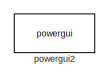
[diagram: root canvas - part 1/3, top left region]
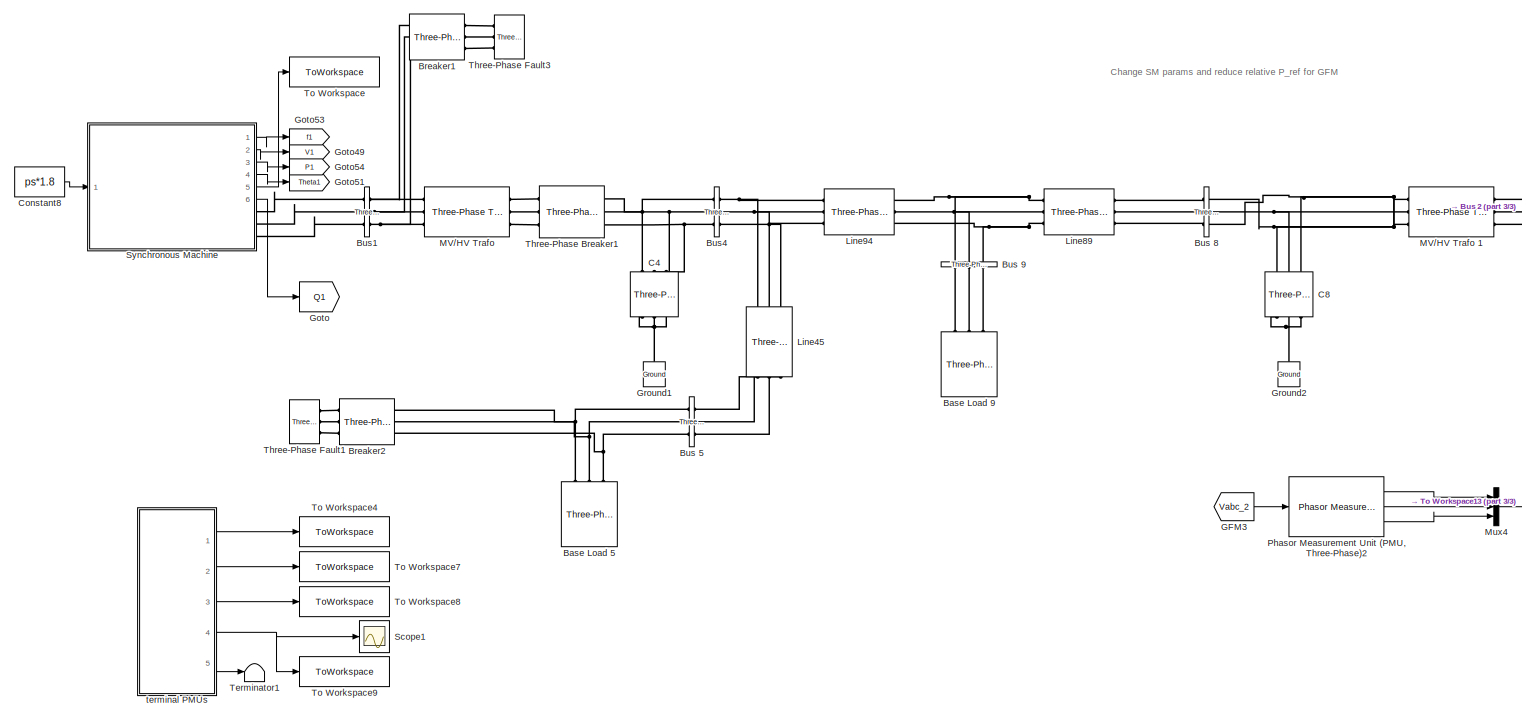
[diagram: root canvas - part 2/3, middle left region]
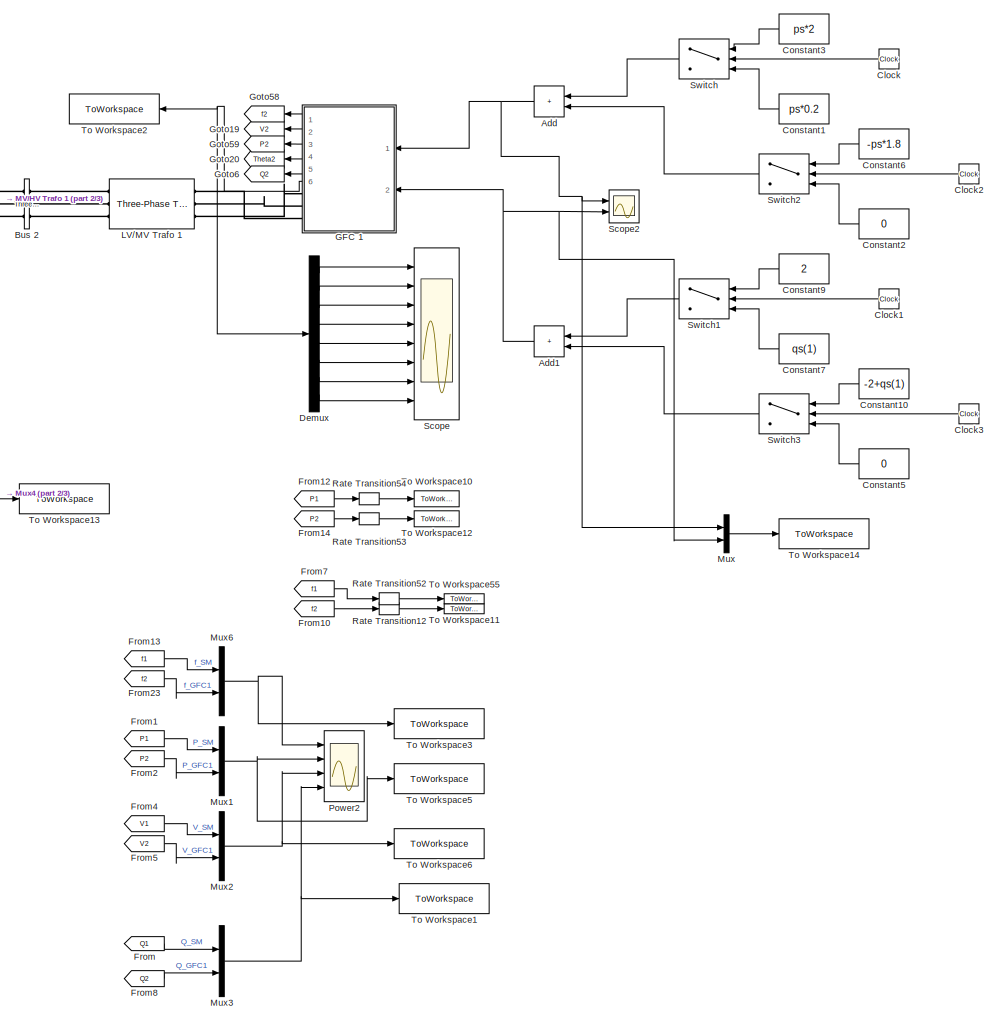
[diagram: root canvas - part 3/3, right side, full height]
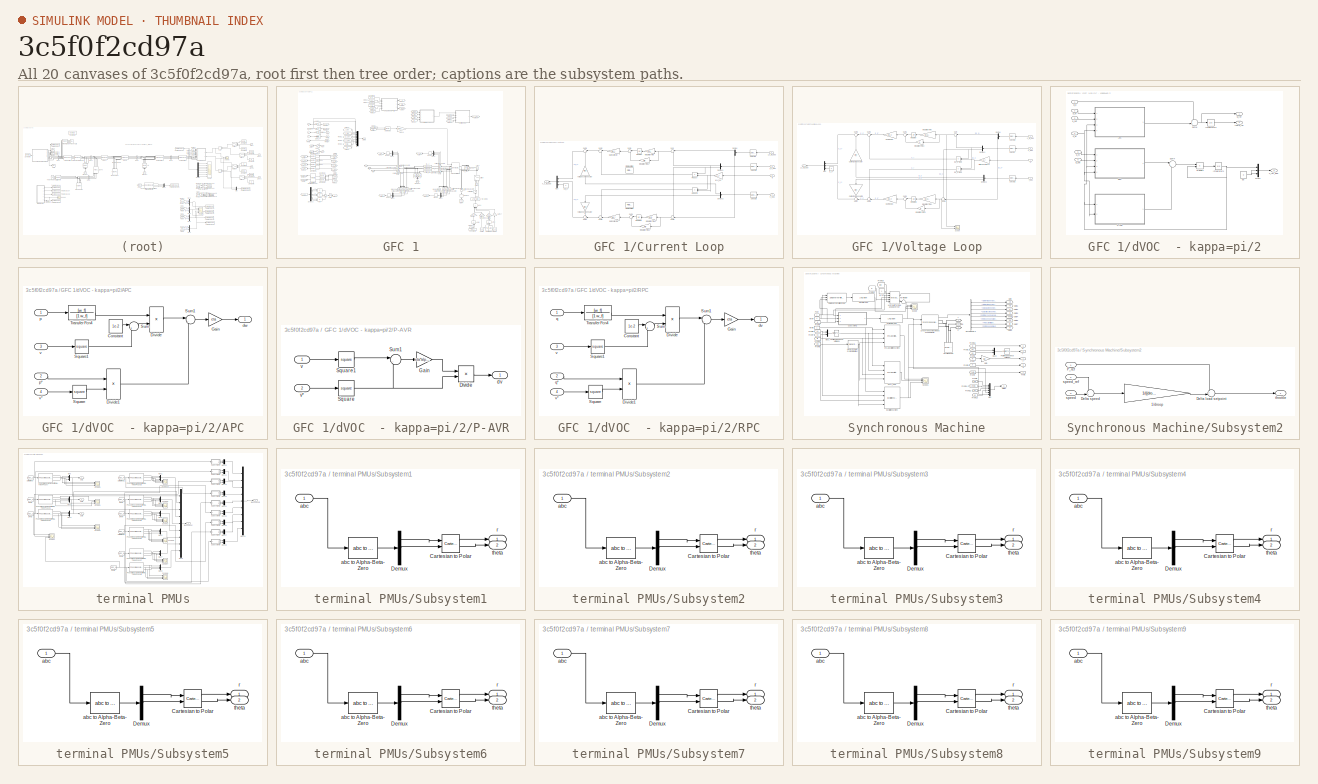
[diagram: thumbnail index - all 20 canvases of the model, root first then tree order]
MODEL slx_3c5f0f2cd97a
KIND model
CONFIG AbsTol = auto
CONFIG EnableMultiTasking = off
CONFIG FixedStep = auto
CONFIG MaxStep = auto
CONFIG MinStep = auto
CONFIG RelTol = 1e-3
CONFIG SampleTimeConstraint = Unconstrained
CONFIG SolverName = VariableStepAuto
CONFIG StartTime = 0.0
CONFIG StopTime = Tend
BLOCK [Sum] Add
  IconShape = rectangular
  Ports = [2, 1]
BLOCK [Sum] Add1
  IconShape = rectangular
  Ports = [2, 1]
BLOCK [Reference] Base Load 5  REF=spsThreePhaseParallelRLCLoadLib/Three-Phase
Parallel RLC Load
  AttributesFormatString = \n
  NameLocation = right
  Ports = [0, 0, 0, 0, 0, 3]
  SourceBlock = spsThreePhaseParallelRLCLoadLib/Three-Phase\nParallel RLC Load
  SourceType = Three-Phase Parallel RLC Load
BLOCK [Reference] Base Load 9   REF=spsThreePhaseParallelRLCLoadLib/Three-Phase
Parallel RLC Load
  AttributesFormatString = \n
  NameLocation = right
  Ports = [0, 0, 0, 0, 0, 3]
  SourceBlock = spsThreePhaseParallelRLCLoadLib/Three-Phase\nParallel RLC Load
  SourceType = Three-Phase Parallel RLC Load
BLOCK [Reference] Breaker1  REF=spsThreePhaseBreakerLib/Three-Phase Breaker
  Ports = [0, 0, 0, 0, 0, 3, 3]
  SourceBlock = spsThreePhaseBreakerLib/Three-Phase Breaker
  SourceType = Three-Phase Breaker
BLOCK [Reference] Breaker2  REF=spsThreePhaseBreakerLib/Three-Phase Breaker
  Ports = [0, 0, 0, 0, 0, 3, 3]
  SourceBlock = spsThreePhaseBreakerLib/Three-Phase Breaker
  SourceType = Three-Phase Breaker
BLOCK [Reference] Bus 2  REF=spsThreePhaseVIMeasurementLib/Three-Phase
V-I Measurement
  Ports = [0, 0, 0, 0, 0, 3, 3]
  SourceBlock = spsThreePhaseVIMeasurementLib/Three-Phase\nV-I Measurement
  SourceType = Three-Phase VI Measurement
BLOCK [Reference] Bus 5  REF=spsThreePhaseVIMeasurementLib/Three-Phase
V-I Measurement
  Ports = [0, 0, 0, 0, 0, 3, 3]
  SourceBlock = spsThreePhaseVIMeasurementLib/Three-Phase\nV-I Measurement
  SourceType = Three-Phase VI Measurement
BLOCK [Reference] Bus 8  REF=spsThreePhaseVIMeasurementLib/Three-Phase
V-I Measurement
  Ports = [0, 0, 0, 0, 0, 3, 3]
  SourceBlock = spsThreePhaseVIMeasurementLib/Three-Phase\nV-I Measurement
  SourceType = Three-Phase VI Measurement
BLOCK [Reference] Bus 9  REF=spsThreePhaseVIMeasurementLib/Three-Phase
V-I Measurement
  NameLocation = left
  Ports = [0, 0, 0, 0, 0, 3, 3]
  SourceBlock = spsThreePhaseVIMeasurementLib/Three-Phase\nV-I Measurement
  SourceType = Three-Phase VI Measurement
BLOCK [Reference] Bus1  REF=spsThreePhaseVIMeasurementLib/Three-Phase
V-I Measurement
  Ports = [0, 0, 0, 0, 0, 3, 3]
  SourceBlock = spsThreePhaseVIMeasurementLib/Three-Phase\nV-I Measurement
  SourceType = Three-Phase VI Measurement
BLOCK [Reference] Bus4  REF=spsThreePhaseVIMeasurementLib/Three-Phase
V-I Measurement
  Ports = [0, 0, 0, 0, 0, 3, 3]
  SourceBlock = spsThreePhaseVIMeasurementLib/Three-Phase\nV-I Measurement
  SourceType = Three-Phase VI Measurement
BLOCK [Reference] C4  REF=spsThreePhaseParallelRLCBranchLib/Three-Phase
Parallel RLC Branch
  AttributesFormatString = \n
  NameLocation = left
  Ports = [0, 0, 0, 0, 0, 3, 3]
  SourceBlock = spsThreePhaseParallelRLCBranchLib/Three-Phase\nParallel RLC Branch
  SourceType = Three-Phase Parallel RLC Branch
BLOCK [Reference] C8  REF=spsThreePhaseParallelRLCBranchLib/Three-Phase
Parallel RLC Branch
  AttributesFormatString = \n
  NameLocation = left
  Ports = [0, 0, 0, 0, 0, 3, 3]
  SourceBlock = spsThreePhaseParallelRLCBranchLib/Three-Phase\nParallel RLC Branch
  SourceType = Three-Phase Parallel RLC Branch
BLOCK [Clock] Clock
  Decimation = 5
BLOCK [Clock] Clock1
  Decimation = 5
BLOCK [Clock] Clock2
  Decimation = 5
BLOCK [Clock] Clock3
  Decimation = 5
BLOCK [Constant] Constant1
  NameLocation = top
  Value = ps*0.2
BLOCK [Constant] Constant10
  NameLocation = top
  Value = -2+qs(1)
BLOCK [Constant] Constant2
  NameLocation = top
  Value = 0
BLOCK [Constant] Constant3
  NameLocation = top
  Value = ps*2
BLOCK [Constant] Constant5
  NameLocation = top
  Value = 0
BLOCK [Constant] Constant6
  NameLocation = top
  Value = -ps*1.8
BLOCK [Constant] Constant7
  NameLocation = top
  Value = qs(1)
BLOCK [Constant] Constant8
  Value = ps*1.8
BLOCK [Constant] Constant9
  NameLocation = top
  Value = 2
BLOCK [Demux] Demux
  Outputs = 8
  Ports = [1, 8]
BLOCK [From] From
  GotoTag = Q1
BLOCK [From] From1
  GotoTag = P1
BLOCK [From] From10
  GotoTag = f2
BLOCK [From] From12
  GotoTag = P1
BLOCK [From] From13
  GotoTag = f1
BLOCK [From] From14
  GotoTag = P2
BLOCK [From] From2
  GotoTag = P2
BLOCK [From] From23
  GotoTag = f2
BLOCK [From] From4
  GotoTag = V1
BLOCK [From] From5
  GotoTag = V2
BLOCK [From] From7
  GotoTag = f1
BLOCK [From] From8
  GotoTag = Q2
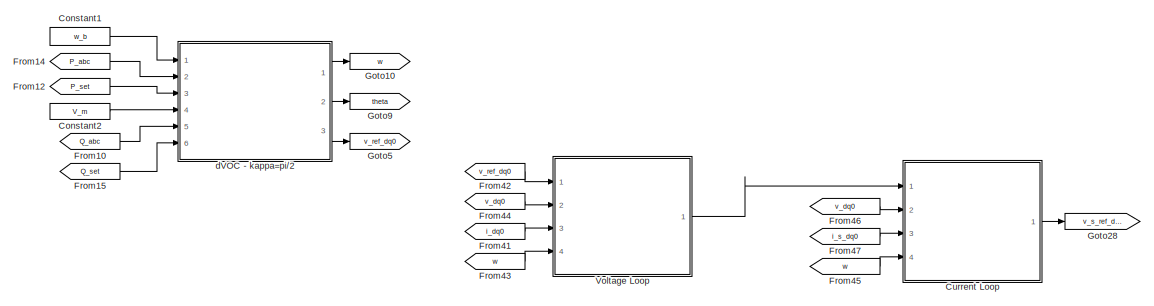
[diagram: GFC 1 - part 1/3, top center region]
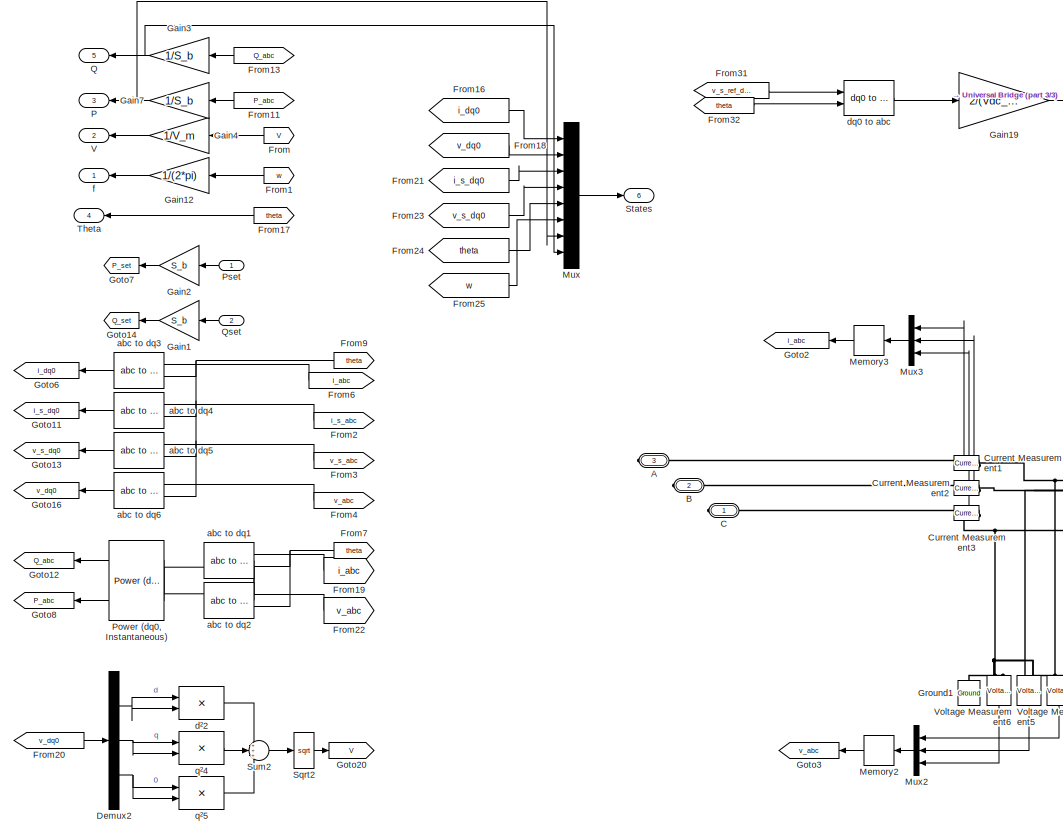
[diagram: GFC 1 - part 2/3, middle left region]
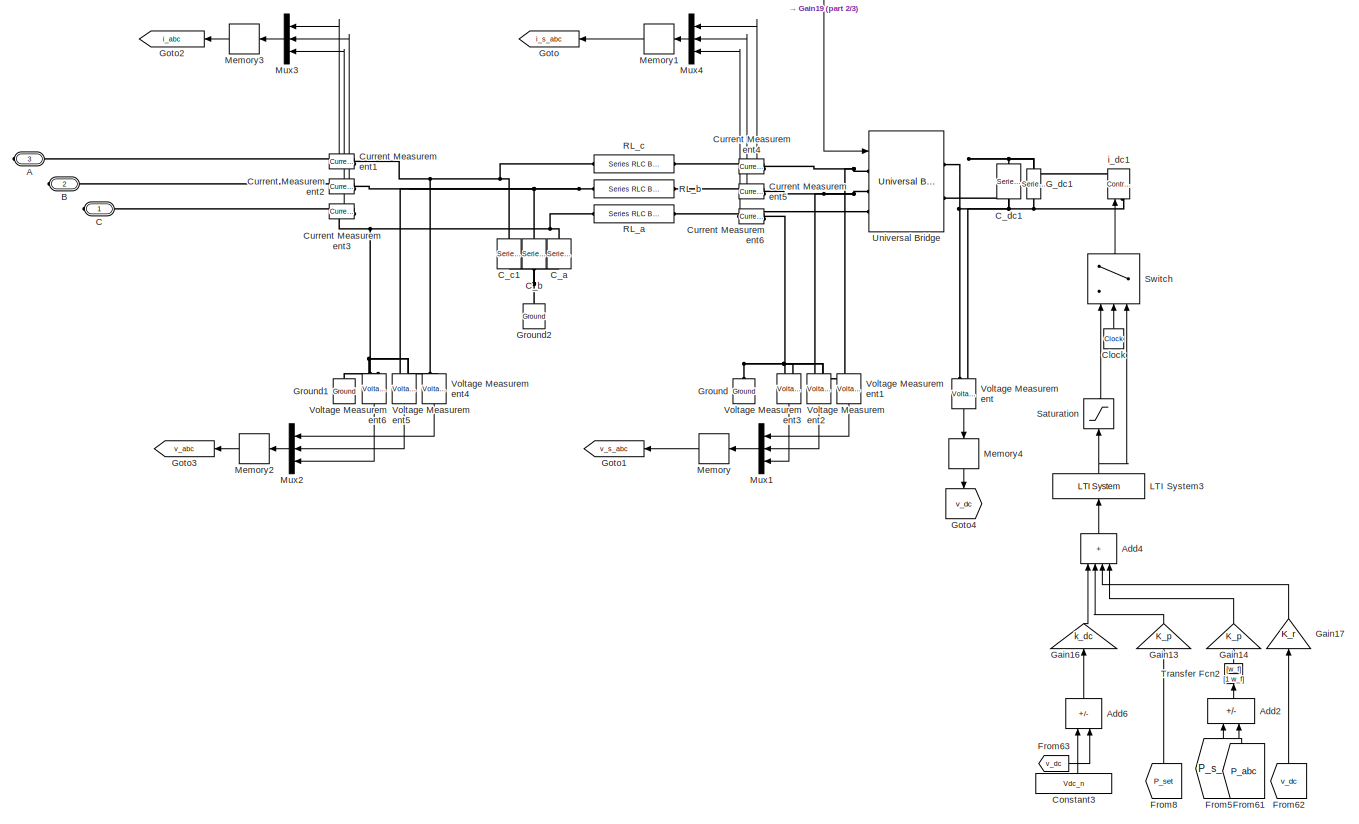
[diagram: GFC 1 - part 3/3, bottom center region]
BLOCK [SubSystem] GFC 1
  NameLocation = top
  Ports = [2, 6, 0, 0, 0, 0, 3]
BLOCK [PMIOPort] GFC 1/A
  Port = 3
  Side = Right
BLOCK [Sum] GFC 1/Add2
  IconShape = rectangular
  Inputs = +-
  NameLocation = right
  Ports = [2, 1]
BLOCK [Sum] GFC 1/Add4
  IconShape = rectangular
  Inputs = ++++
  NameLocation = right
  Ports = [4, 1]
BLOCK [Sum] GFC 1/Add6
  IconShape = rectangular
  Inputs = +-
  NameLocation = right
  Ports = [2, 1]
BLOCK [PMIOPort] GFC 1/B
  Port = 2
  Side = Right
BLOCK [PMIOPort] GFC 1/C
  Side = Right
BLOCK [Reference] GFC 1/C_a  REF=spsSeriesRLCBranchLib/Series RLC Branch
  NameLocation = left
  Ports = [0, 0, 0, 0, 0, 1, 1]
  SourceBlock = spsSeriesRLCBranchLib/Series RLC Branch
  SourceType = Series RLC Branch
BLOCK [Reference] GFC 1/C_b  REF=spsSeriesRLCBranchLib/Series RLC Branch
  NameLocation = left
  Ports = [0, 0, 0, 0, 0, 1, 1]
  SourceBlock = spsSeriesRLCBranchLib/Series RLC Branch
  SourceType = Series RLC Branch
BLOCK [Reference] GFC 1/C_c1  REF=spsSeriesRLCBranchLib/Series RLC Branch
  NameLocation = left
  Ports = [0, 0, 0, 0, 0, 1, 1]
  SourceBlock = spsSeriesRLCBranchLib/Series RLC Branch
  SourceType = Series RLC Branch
BLOCK [Reference] GFC 1/C_dc1  REF=spsSeriesRLCBranchLib/Series RLC Branch
  NameLocation = left
  Ports = [0, 0, 0, 0, 0, 1, 1]
  SourceBlock = spsSeriesRLCBranchLib/Series RLC Branch
  SourceType = Series RLC Branch
BLOCK [Clock] GFC 1/Clock
  NameLocation = right
BLOCK [Constant] GFC 1/Constant1
  Value = w_b
BLOCK [Constant] GFC 1/Constant2
  Value = V_m
BLOCK [Constant] GFC 1/Constant3
  NameLocation = right
  Value = Vdc_n
BLOCK [SubSystem] GFC 1/Current Loop
  Ports = [4, 1]
BLOCK [Demux] GFC 1/Current Loop/Demux
  NameLocation = top
  Outputs = 2
  Ports = [1, 2]
BLOCK [Demux] GFC 1/Current Loop/Demux1
  NameLocation = top
  Outputs = 2
  Ports = [1, 2]
BLOCK [Demux] GFC 1/Current Loop/Demux2
  NameLocation = top
  Outputs = 2
  Ports = [1, 2]
BLOCK [Reference] GFC 1/Current Loop/First-Order Filter2  REF=spsFirstOrderFilterLib/First-Order
Filter
  Commented = on
  NameLocation = top
  Ports = [1, 1]
  SourceBlock = spsFirstOrderFilterLib/First-Order\nFilter
  SourceType = First-Order Filter
BLOCK [Reference] GFC 1/Current Loop/First-Order Filter3  REF=spsFirstOrderFilterLib/First-Order
Filter
  Commented = on
  NameLocation = top
  Ports = [1, 1]
  SourceBlock = spsFirstOrderFilterLib/First-Order\nFilter
  SourceType = First-Order Filter
BLOCK [Gain] GFC 1/Current Loop/Gain Corrector
  Gain = Kp_i
  NameLocation = top
BLOCK [Gain] GFC 1/Current Loop/Gain Corrector1
  Gain = Kp_i
  NameLocation = top
BLOCK [Gain] GFC 1/Current Loop/Integration Time
  Gain = Ki_i / Kp_i
  NameLocation = top
BLOCK [Gain] GFC 1/Current Loop/Integration Time 1
  Gain = Ki_i / Kp_i
  NameLocation = top
BLOCK [Gain] GFC 1/Current Loop/Integration Time1
  Gain = 1/n
  NameLocation = top
BLOCK [Gain] GFC 1/Current Loop/Integration Time2
  Gain = 1/n
  NameLocation = top
BLOCK [Integrator] GFC 1/Current Loop/Integrator
  NameLocation = top
  Ports = [1, 1]
BLOCK [Integrator] GFC 1/Current Loop/Integrator 1
  NameLocation = top
  Ports = [1, 1]
BLOCK [Mux] GFC 1/Current Loop/Mux
  DisplayOption = bar
  Inputs = 3
  NameLocation = top
  Ports = [3, 1]
BLOCK [Product] GFC 1/Current Loop/Product
  NameLocation = top
  Ports = [2, 1]
  RndMeth = Zero
BLOCK [Product] GFC 1/Current Loop/Product1
  NameLocation = top
  Ports = [2, 1]
  RndMeth = Zero
BLOCK [Selector] GFC 1/Current Loop/Selector1
  IndexOptions = Index vector (dialog)
  Indices = [1 2]
  InputPortWidth = 3
  NameLocation = top
  OutputSizes = 1
  Ports = [1, 1]
BLOCK [Selector] GFC 1/Current Loop/Selector2
  IndexOptions = Index vector (dialog)
  Indices = [1 2]
  InputPortWidth = 3
  NameLocation = top
  OutputSizes = 1
  Ports = [1, 1]
BLOCK [Selector] GFC 1/Current Loop/Selector3
  IndexOptions = Index vector (dialog)
  Indices = [1 2]
  InputPortWidth = 3
  NameLocation = top
  OutputSizes = 1
  Ports = [1, 1]
BLOCK [Sum] GFC 1/Current Loop/Sum
  Inputs = |+-
  NameLocation = top
  Ports = [2, 1]
BLOCK [Sum] GFC 1/Current Loop/Sum1
  Inputs = |++
  NameLocation = top
  Ports = [2, 1]
BLOCK [Sum] GFC 1/Current Loop/Sum2
  Inputs = |+-
  NameLocation = top
  Ports = [2, 1]
BLOCK [Sum] GFC 1/Current Loop/Sum3
  Inputs = |++
  NameLocation = top
  Ports = [2, 1]
BLOCK [Sum] GFC 1/Current Loop/Sum4
  Inputs = |++
  NameLocation = top
  Ports = [2, 1]
BLOCK [Sum] GFC 1/Current Loop/Sum5
  Inputs = ++|
  NameLocation = top
  Ports = [2, 1]
BLOCK [Sum] GFC 1/Current Loop/Sum6
  Inputs = -+|
  NameLocation = top
  Ports = [2, 1]
BLOCK [Sum] GFC 1/Current Loop/Sum7
  Inputs = ++|
  NameLocation = top
  Ports = [2, 1]
BLOCK [Constant] GFC 1/Current Loop/Vm_0*
  Value = 0
BLOCK [Gain] GFC 1/Current Loop/Voltage Compensator 1
  Gain = Kff_v
  NameLocation = left
BLOCK [Gain] GFC 1/Current Loop/Voltage compensator
  Gain = Kff_v
  NameLocation = left
BLOCK [Inport] GFC 1/Current Loop/i_s_dq0
  NameLocation = top
  Port = 3
BLOCK [Inport] GFC 1/Current Loop/i_s_ref_dq0
  NameLocation = top
BLOCK [Inport] GFC 1/Current Loop/v_dq0
  NameLocation = top
  Port = 2
BLOCK [Outport] GFC 1/Current Loop/v_s_ref_dq0
  NameLocation = top
  VectorParamsAs1DForOutWhenUnconnected = off
BLOCK [Inport] GFC 1/Current Loop/w
  NameLocation = top
  Port = 4
BLOCK [Gain] GFC 1/Current Loop/w*Lf_pu
  Gain = L_f
BLOCK [Reference] GFC 1/Current Measurement1  REF=spsCurrentMeasurementLib/Current Measurement
  NameLocation = top
  Ports = [0, 1, 0, 0, 0, 1, 1]
  SourceBlock = spsCurrentMeasurementLib/Current Measurement
  SourceType = Current Measurement
  UserDataPersistent = on
BLOCK [Reference] GFC 1/Current Measurement2  REF=spsCurrentMeasurementLib/Current Measurement
  NameLocation = top
  Ports = [0, 1, 0, 0, 0, 1, 1]
  SourceBlock = spsCurrentMeasurementLib/Current Measurement
  SourceType = Current Measurement
  UserDataPersistent = on
BLOCK [Reference] GFC 1/Current Measurement3  REF=spsCurrentMeasurementLib/Current Measurement
  NameLocation = top
  Ports = [0, 1, 0, 0, 0, 1, 1]
  SourceBlock = spsCurrentMeasurementLib/Current Measurement
  SourceType = Current Measurement
  UserDataPersistent = on
BLOCK [Reference] GFC 1/Current Measurement4  REF=spsCurrentMeasurementLib/Current Measurement
  NameLocation = top
  Ports = [0, 1, 0, 0, 0, 1, 1]
  SourceBlock = spsCurrentMeasurementLib/Current Measurement
  SourceType = Current Measurement
  UserDataPersistent = on
BLOCK [Reference] GFC 1/Current Measurement5  REF=spsCurrentMeasurementLib/Current Measurement
  NameLocation = top
  Ports = [0, 1, 0, 0, 0, 1, 1]
  SourceBlock = spsCurrentMeasurementLib/Current Measurement
  SourceType = Current Measurement
  UserDataPersistent = on
BLOCK [Reference] GFC 1/Current Measurement6  REF=spsCurrentMeasurementLib/Current Measurement
  NameLocation = top
  Ports = [0, 1, 0, 0, 0, 1, 1]
  SourceBlock = spsCurrentMeasurementLib/Current Measurement
  SourceType = Current Measurement
  UserDataPersistent = on
BLOCK [Demux] GFC 1/Demux2
  Outputs = 3
  Ports = [1, 3]
BLOCK [From] GFC 1/From
  GotoTag = V
BLOCK [From] GFC 1/From1
  GotoTag = w
  NameLocation = top
BLOCK [From] GFC 1/From10
  GotoTag = Q_abc
  NameLocation = top
BLOCK [From] GFC 1/From11
  GotoTag = P_abc
BLOCK [From] GFC 1/From12
  GotoTag = P_set
  NameLocation = top
BLOCK [From] GFC 1/From13
  GotoTag = Q_abc
BLOCK [From] GFC 1/From14
  GotoTag = P_abc
  NameLocation = top
BLOCK [From] GFC 1/From15
  GotoTag = Q_set
  NameLocation = top
BLOCK [From] GFC 1/From16
  GotoTag = i_dq0
BLOCK [From] GFC 1/From17
  GotoTag = theta
  NameLocation = top
BLOCK [From] GFC 1/From18
  GotoTag = v_dq0
BLOCK [From] GFC 1/From19
  GotoTag = i_abc
  NameLocation = top
BLOCK [From] GFC 1/From2
  GotoTag = i_s_abc
BLOCK [From] GFC 1/From20
  GotoTag = v_dq0
  NameLocation = top
BLOCK [From] GFC 1/From21
  GotoTag = i_s_dq0
BLOCK [From] GFC 1/From22
  GotoTag = v_abc
  NameLocation = top
BLOCK [From] GFC 1/From23
  GotoTag = v_s_dq0
BLOCK [From] GFC 1/From24
  GotoTag = theta
BLOCK [From] GFC 1/From25
  GotoTag = w
BLOCK [From] GFC 1/From3
  GotoTag = v_s_abc
BLOCK [From] GFC 1/From31
  GotoTag = v_s_ref_dq0
BLOCK [From] GFC 1/From32
  GotoTag = theta
BLOCK [From] GFC 1/From4
  GotoTag = v_abc
BLOCK [From] GFC 1/From41
  GotoTag = i_dq0
  NameLocation = top
BLOCK [From] GFC 1/From42
  GotoTag = v_ref_dq0
BLOCK [From] GFC 1/From43
  GotoTag = w
BLOCK [From] GFC 1/From44
  GotoTag = v_dq0
  NameLocation = top
BLOCK [From] GFC 1/From45
  GotoTag = w
BLOCK [From] GFC 1/From46
  GotoTag = v_dq0
  NameLocation = top
BLOCK [From] GFC 1/From47
  GotoTag = i_s_dq0
  NameLocation = top
BLOCK [From] GFC 1/From5
  GotoTag = P_s_abc
  NameLocation = left
BLOCK [From] GFC 1/From6
  GotoTag = i_abc
BLOCK [From] GFC 1/From61
  GotoTag = P_abc
  NameLocation = left
BLOCK [From] GFC 1/From62
  GotoTag = v_dc
  NameLocation = left
BLOCK [From] GFC 1/From63
  GotoTag = v_dc
  NameLocation = top
BLOCK [From] GFC 1/From7
  GotoTag = theta
  NameLocation = top
BLOCK [From] GFC 1/From8
  GotoTag = P_set
  NameLocation = left
BLOCK [From] GFC 1/From9
  GotoTag = theta
  NameLocation = top
BLOCK [Reference] GFC 1/G_dc1  REF=spsSeriesRLCBranchLib/Series RLC Branch
  NameLocation = left
  Ports = [0, 0, 0, 0, 0, 1, 1]
  SourceBlock = spsSeriesRLCBranchLib/Series RLC Branch
  SourceType = Series RLC Branch
BLOCK [Gain] GFC 1/Gain1
  Gain = S_b
  NameLocation = top
BLOCK [Gain] GFC 1/Gain12
  Gain = 1/(2*pi)
  NameLocation = top
BLOCK [Gain] GFC 1/Gain13
  Gain = K_p
  NameLocation = right
BLOCK [Gain] GFC 1/Gain14
  Gain = K_p
  NameLocation = right
BLOCK [Gain] GFC 1/Gain16
  Gain = k_dc
  NameLocation = right
BLOCK [Gain] GFC 1/Gain17
  Gain = K_r
  NameLocation = right
BLOCK [Gain] GFC 1/Gain19
  Gain = 2/(Vdc_n)
BLOCK [Gain] GFC 1/Gain2
  Gain = S_b
  NameLocation = top
BLOCK [Gain] GFC 1/Gain3
  Gain = 1/S_b
  NameLocation = top
BLOCK [Gain] GFC 1/Gain4
  Gain = 1/V_m
  NameLocation = top
BLOCK [Gain] GFC 1/Gain7
  Gain = 1/S_b
  NameLocation = top
BLOCK [Goto] GFC 1/Goto
  GotoTag = i_s_abc
  NameLocation = top
BLOCK [Goto] GFC 1/Goto1
  GotoTag = v_s_abc
  NameLocation = top
BLOCK [Goto] GFC 1/Goto10
  GotoTag = w
  NameLocation = top
BLOCK [Goto] GFC 1/Goto11
  GotoTag = i_s_dq0
BLOCK [Goto] GFC 1/Goto12
  GotoTag = Q_abc
  NameLocation = top
BLOCK [Goto] GFC 1/Goto13
  GotoTag = v_s_dq0
BLOCK [Goto] GFC 1/Goto14
  GotoTag = Q_set
  NameLocation = top
BLOCK [Goto] GFC 1/Goto16
  GotoTag = v_dq0
BLOCK [Goto] GFC 1/Goto2
  GotoTag = i_abc
BLOCK [Goto] GFC 1/Goto20
  GotoTag = V
BLOCK [Goto] GFC 1/Goto28
  GotoTag = v_s_ref_dq0
  NameLocation = top
BLOCK [Goto] GFC 1/Goto3
  GotoTag = v_abc
  NameLocation = top
BLOCK [Goto] GFC 1/Goto4
  GotoTag = v_dc
  NameLocation = left
BLOCK [Goto] GFC 1/Goto5
  GotoTag = v_ref_dq0
BLOCK [Goto] GFC 1/Goto6
  GotoTag = i_dq0
BLOCK [Goto] GFC 1/Goto7
  GotoTag = P_set
  NameLocation = top
BLOCK [Goto] GFC 1/Goto8
  GotoTag = P_abc
  NameLocation = top
BLOCK [Goto] GFC 1/Goto9
  GotoTag = theta
BLOCK [Reference] GFC 1/Ground  REF=spsGroundLib/Ground
  NameLocation = right
  Ports = [0, 0, 0, 0, 0, 1]
  SourceBlock = spsGroundLib/Ground
  SourceType = Ground
BLOCK [Reference] GFC 1/Ground1  REF=spsGroundLib/Ground
  NameLocation = right
  Ports = [0, 0, 0, 0, 0, 1]
  SourceBlock = spsGroundLib/Ground
  SourceType = Ground
BLOCK [Reference] GFC 1/Ground2  REF=spsGroundLib/Ground
  NameLocation = right
  Ports = [0, 0, 0, 0, 0, 1]
  SourceBlock = spsGroundLib/Ground
  SourceType = Ground
BLOCK [Reference] GFC 1/LTI System3  REF=cstblocks/LTI System
  NameLocation = right
  Ports = [1, 1]
  SourceBlock = cstblocks/LTI System
  SourceType = LTI Block
BLOCK [Memory] GFC 1/Memory
  NameLocation = top
BLOCK [Memory] GFC 1/Memory1
  NameLocation = top
BLOCK [Memory] GFC 1/Memory2
  NameLocation = top
BLOCK [Memory] GFC 1/Memory3
  NameLocation = top
BLOCK [Memory] GFC 1/Memory4
  NameLocation = left
BLOCK [Mux] GFC 1/Mux
  DisplayOption = bar
  Inputs = 8
  Ports = [8, 1]
BLOCK [Mux] GFC 1/Mux1
  DisplayOption = bar
  Inputs = 3
  NameLocation = top
  Ports = [3, 1]
BLOCK [Mux] GFC 1/Mux2
  DisplayOption = bar
  Inputs = 3
  NameLocation = top
  Ports = [3, 1]
BLOCK [Mux] GFC 1/Mux3
  DisplayOption = bar
  Inputs = 3
  NameLocation = top
  Ports = [3, 1]
BLOCK [Mux] GFC 1/Mux4
  DisplayOption = bar
  Inputs = 3
  NameLocation = top
  Ports = [3, 1]
BLOCK [Outport] GFC 1/P
  NameLocation = top
  Port = 3
  VectorParamsAs1DForOutWhenUnconnected = off
BLOCK [Reference] GFC 1/Power (dq0, Instantaneous)  REF=spsPowerdq0InstantaneousLib/Power
(dq0, Instantaneous)
  NameLocation = top
  Ports = [2, 2]
  SourceBlock = spsPowerdq0InstantaneousLib/Power\n(dq0, Instantaneous)
  SourceType = Power (dq0, Instantaneous)
BLOCK [Inport] GFC 1/Pset
  NameLocation = top
BLOCK [Outport] GFC 1/Q
  NameLocation = top
  Port = 5
  VectorParamsAs1DForOutWhenUnconnected = off
BLOCK [Inport] GFC 1/Qset
  NameLocation = top
  Port = 2
BLOCK [Reference] GFC 1/RL_a  REF=spsSeriesRLCBranchLib/Series RLC Branch
  NameLocation = top
  Ports = [0, 0, 0, 0, 0, 1, 1]
  SourceBlock = spsSeriesRLCBranchLib/Series RLC Branch
  SourceType = Series RLC Branch
BLOCK [Reference] GFC 1/RL_b  REF=spsSeriesRLCBranchLib/Series RLC Branch
  NameLocation = top
  Ports = [0, 0, 0, 0, 0, 1, 1]
  SourceBlock = spsSeriesRLCBranchLib/Series RLC Branch
  SourceType = Series RLC Branch
BLOCK [Reference] GFC 1/RL_c  REF=spsSeriesRLCBranchLib/Series RLC Branch
  NameLocation = top
  Ports = [0, 0, 0, 0, 0, 1, 1]
  SourceBlock = spsSeriesRLCBranchLib/Series RLC Branch
  SourceType = Series RLC Branch
BLOCK [Saturate] GFC 1/Saturation
  LowerLimit = i_ll
  NameLocation = right
  UpperLimit = i_ul
BLOCK [Sqrt] GFC 1/Sqrt2
BLOCK [Outport] GFC 1/States
  NameLocation = top
  Port = 6
  VectorParamsAs1DForOutWhenUnconnected = off
BLOCK [Sum] GFC 1/Sum2
  InputSameDT = on
  Inputs = +++
  OutDataTypeStr = Inherit: Same as first input
  Ports = [3, 1]
  SaturateOnIntegerOverflow = on
BLOCK [Switch] GFC 1/Switch
  Criteria = u2 > Threshold
  InputSameDT = off
  NameLocation = right
  SaturateOnIntegerOverflow = off
  Threshold = T_en
BLOCK [Outport] GFC 1/Theta
  NameLocation = top
  Port = 4
  VectorParamsAs1DForOutWhenUnconnected = off
BLOCK [TransferFcn] GFC 1/Transfer Fcn2
  Denominator = [1 w_f]
  NameLocation = right
  Numerator = [w_f]
BLOCK [Reference] GFC 1/Universal Bridge  REF=spsUniversalBridgeLib/Universal Bridge
  Ports = [1, 0, 0, 0, 0, 3, 2]
  SourceBlock = spsUniversalBridgeLib/Universal Bridge
  SourceType = Universal Bridge
BLOCK [Outport] GFC 1/V
  NameLocation = top
  Port = 2
  VectorParamsAs1DForOutWhenUnconnected = off
BLOCK [SubSystem] GFC 1/Voltage Loop
  Ports = [4, 1]
BLOCK [Gain] GFC 1/Voltage Loop/Current Compensator
  Gain = Kff_i
  NameLocation = left
BLOCK [Gain] GFC 1/Voltage Loop/Current Compensator1
  Gain = Kff_i
  NameLocation = left
BLOCK [Gain] GFC 1/Voltage Loop/Damping (d)
  Gain = Kp_v
  NameLocation = top
BLOCK [Gain] GFC 1/Voltage Loop/Damping (q)
  Gain = Kp_v
BLOCK [Demux] GFC 1/Voltage Loop/Demux
  NameLocation = top
  Outputs = 2
  Ports = [1, 2]
BLOCK [Demux] GFC 1/Voltage Loop/Demux1
  NameLocation = top
  Outputs = 2
  Ports = [1, 2]
BLOCK [Demux] GFC 1/Voltage Loop/Demux2
  NameLocation = top
  Outputs = 2
  Ports = [1, 2]
BLOCK [Product] GFC 1/Voltage Loop/Eg_d * (wCf)
  Ports = [2, 1]
  RndMeth = Zero
BLOCK [Product] GFC 1/Voltage Loop/Eg_q * (wCf) 
  NameLocation = top
  Ports = [2, 1]
  RndMeth = Zero
BLOCK [Gain] GFC 1/Voltage Loop/Filter capacitance
  Gain = C_f
BLOCK [Gain] GFC 1/Voltage Loop/Integration Time
  Gain = Ki_v / Kp_v
  NameLocation = top
BLOCK [Gain] GFC 1/Voltage Loop/Integration Time1
  Gain = Ki_v / Kp_v
  NameLocation = top
BLOCK [Gain] GFC 1/Voltage Loop/Integration Time2
  Gain = n
  NameLocation = top
BLOCK [Gain] GFC 1/Voltage Loop/Integration Time3
  Gain = n
  NameLocation = top
BLOCK [Integrator] GFC 1/Voltage Loop/Integrator
  NameLocation = top
  Ports = [1, 1]
BLOCK [Integrator] GFC 1/Voltage Loop/Integrator1
  NameLocation = top
  Ports = [1, 1]
BLOCK [Constant] GFC 1/Voltage Loop/Is_0*
  Value = 0
BLOCK [Mux] GFC 1/Voltage Loop/Mux
  DisplayOption = bar
  Inputs = 3
  NameLocation = top
  Ports = [3, 1]
BLOCK [Scope] GFC 1/Voltage Loop/Scope
  Floating = off
  NumInputPorts = 2
  Ports = [2]
  ScopeSpecificationString = Simulink.scopes.TimeScopeBlockCfg('CurrentConfiguration', extmgr.ConfigurationSet(extmgr.Configuration('Core','General UI',true),extmgr.Configuration('Core','Source UI',true),extmgr.Configuration('Sources','WiredSimulink',true,'DataLoggingVariableName','ScopeData4'),extmgr.Configuration('Visuals','Time Domain',true,'SerializedDisplays',{struct('MinYLimReal','-2601.64618','MaxYLimReal','886.33467',...<+2020ch>
BLOCK [Selector] GFC 1/Voltage Loop/Selector
  IndexOptions = Index vector (dialog)
  Indices = [1 2]
  InputPortWidth = 3
  NameLocation = top
  OutputSizes = 1
  Ports = [1, 1]
BLOCK [Selector] GFC 1/Voltage Loop/Selector1
  IndexOptions = Index vector (dialog)
  Indices = [1 2]
  InputPortWidth = 3
  NameLocation = top
  OutputSizes = 1
  Ports = [1, 1]
BLOCK [Selector] GFC 1/Voltage Loop/Selector2
  IndexOptions = Index vector (dialog)
  Indices = [1 2]
  InputPortWidth = 3
  NameLocation = top
  OutputSizes = 1
  Ports = [1, 1]
BLOCK [Sum] GFC 1/Voltage Loop/Sum
  Inputs = |+-
  NameLocation = top
  Ports = [2, 1]
BLOCK [Sum] GFC 1/Voltage Loop/Sum1
  Inputs = |++
  NameLocation = top
  Ports = [2, 1]
BLOCK [Sum] GFC 1/Voltage Loop/Sum2
  Inputs = |+-
  NameLocation = top
  Ports = [2, 1]
BLOCK [Sum] GFC 1/Voltage Loop/Sum3
  Inputs = |++
  NameLocation = top
  Ports = [2, 1]
BLOCK [Sum] GFC 1/Voltage Loop/Sum4
  Inputs = |++
  NameLocation = top
  Ports = [2, 1]
BLOCK [Sum] GFC 1/Voltage Loop/Sum5
  Inputs = ++|
  NameLocation = top
  Ports = [2, 1]
BLOCK [Sum] GFC 1/Voltage Loop/Sum6
  Inputs = -+|
  NameLocation = top
  Ports = [2, 1]
BLOCK [Sum] GFC 1/Voltage Loop/Sum7
  Inputs = ++|
  NameLocation = top
  Ports = [2, 1]
BLOCK [Inport] GFC 1/Voltage Loop/i_dq0
  NameLocation = top
  Port = 3
BLOCK [Outport] GFC 1/Voltage Loop/i_s_ref_dq0
  NameLocation = top
  VectorParamsAs1DForOutWhenUnconnected = off
BLOCK [Inport] GFC 1/Voltage Loop/v_dq0
  NameLocation = top
  Port = 2
BLOCK [Inport] GFC 1/Voltage Loop/v_ref_dq0
  NameLocation = top
BLOCK [Inport] GFC 1/Voltage Loop/w
  NameLocation = top
  Port = 4
BLOCK [Reference] GFC 1/Voltage Measurement  REF=spsVoltageMeasurementLib/Voltage Measurement
  NameLocation = left
  Ports = [0, 1, 0, 0, 0, 2]
  SourceBlock = spsVoltageMeasurementLib/Voltage Measurement
  SourceType = Voltage Measurement
  UserDataPersistent = on
BLOCK [Reference] GFC 1/Voltage Measurement1  REF=spsVoltageMeasurementLib/Voltage Measurement
  NameLocation = left
  Ports = [0, 1, 0, 0, 0, 2]
  SourceBlock = spsVoltageMeasurementLib/Voltage Measurement
  SourceType = Voltage Measurement
  UserDataPersistent = on
BLOCK [Reference] GFC 1/Voltage Measurement2  REF=spsVoltageMeasurementLib/Voltage Measurement
  NameLocation = left
  Ports = [0, 1, 0, 0, 0, 2]
  SourceBlock = spsVoltageMeasurementLib/Voltage Measurement
  SourceType = Voltage Measurement
  UserDataPersistent = on
BLOCK [Reference] GFC 1/Voltage Measurement3  REF=spsVoltageMeasurementLib/Voltage Measurement
  NameLocation = left
  Ports = [0, 1, 0, 0, 0, 2]
  SourceBlock = spsVoltageMeasurementLib/Voltage Measurement
  SourceType = Voltage Measurement
  UserDataPersistent = on
BLOCK [Reference] GFC 1/Voltage Measurement4  REF=spsVoltageMeasurementLib/Voltage Measurement
  NameLocation = left
  Ports = [0, 1, 0, 0, 0, 2]
  SourceBlock = spsVoltageMeasurementLib/Voltage Measurement
  SourceType = Voltage Measurement
  UserDataPersistent = on
BLOCK [Reference] GFC 1/Voltage Measurement5  REF=spsVoltageMeasurementLib/Voltage Measurement
  NameLocation = left
  Ports = [0, 1, 0, 0, 0, 2]
  SourceBlock = spsVoltageMeasurementLib/Voltage Measurement
  SourceType = Voltage Measurement
  UserDataPersistent = on
BLOCK [Reference] GFC 1/Voltage Measurement6  REF=spsVoltageMeasurementLib/Voltage Measurement
  NameLocation = left
  Ports = [0, 1, 0, 0, 0, 2]
  SourceBlock = spsVoltageMeasurementLib/Voltage Measurement
  SourceType = Voltage Measurement
  UserDataPersistent = on
BLOCK [Reference] GFC 1/abc to dq1  REF=spsabctodq0Lib/abc to dq0
  NameLocation = top
  Ports = [2, 1]
  SourceBlock = spsabctodq0Lib/abc to dq0
  SourceType = abc to dq0 Transformation
BLOCK [Reference] GFC 1/abc to dq2  REF=spsabctodq0Lib/abc to dq0
  NameLocation = top
  Ports = [2, 1]
  SourceBlock = spsabctodq0Lib/abc to dq0
  SourceType = abc to dq0 Transformation
BLOCK [Reference] GFC 1/abc to dq3  REF=spsabctodq0Lib/abc to dq0
  NameLocation = top
  Ports = [2, 1]
  SourceBlock = spsabctodq0Lib/abc to dq0
  SourceType = abc to dq0 Transformation
BLOCK [Reference] GFC 1/abc to dq4  REF=spsabctodq0Lib/abc to dq0
  NameLocation = top
  Ports = [2, 1]
  SourceBlock = spsabctodq0Lib/abc to dq0
  SourceType = abc to dq0 Transformation
BLOCK [Reference] GFC 1/abc to dq5  REF=spsabctodq0Lib/abc to dq0
  NameLocation = top
  Ports = [2, 1]
  SourceBlock = spsabctodq0Lib/abc to dq0
  SourceType = abc to dq0 Transformation
BLOCK [Reference] GFC 1/abc to dq6  REF=spsabctodq0Lib/abc to dq0
  NameLocation = top
  Ports = [2, 1]
  SourceBlock = spsabctodq0Lib/abc to dq0
  SourceType = abc to dq0 Transformation
BLOCK [SubSystem] GFC 1/dVOC  - kappa=pi//2
  Ports = [6, 3]
BLOCK [SubSystem] GFC 1/dVOC  - kappa=pi//2/APC
  Ports = [4, 1]
BLOCK [Constant] GFC 1/dVOC  - kappa=pi//2/APC/Constant
  Value = 1e-2
BLOCK [Product] GFC 1/dVOC  - kappa=pi//2/APC/Divide
  Inputs = */
  Ports = [2, 1]
BLOCK [Product] GFC 1/dVOC  - kappa=pi//2/APC/Divide1
  Inputs = */
  Ports = [2, 1]
BLOCK [Gain] GFC 1/dVOC  - kappa=pi//2/APC/Gain
  Gain = eta
BLOCK [Math] GFC 1/dVOC  - kappa=pi//2/APC/Square
  Operator = square
  Ports = [1, 1]
  SignedPower = on
BLOCK [Math] GFC 1/dVOC  - kappa=pi//2/APC/Square1
  Operator = square
  Ports = [1, 1]
  SignedPower = on
BLOCK [Sum] GFC 1/dVOC  - kappa=pi//2/APC/Sum
  Inputs = |++
  Ports = [2, 1]
BLOCK [Sum] GFC 1/dVOC  - kappa=pi//2/APC/Sum1
  Inputs = |-+
  Ports = [2, 1]
BLOCK [TransferFcn] GFC 1/dVOC  - kappa=pi//2/APC/Transfer Fcn4
  Denominator = [1 w_f]
  Numerator = [w_f]
BLOCK [Outport] GFC 1/dVOC  - kappa=pi//2/APC/dw
  VectorParamsAs1DForOutWhenUnconnected = off
BLOCK [Inport] GFC 1/dVOC  - kappa=pi//2/APC/p
BLOCK [Inport] GFC 1/dVOC  - kappa=pi//2/APC/p*
  Port = 2
BLOCK [Inport] GFC 1/dVOC  - kappa=pi//2/APC/v
  Port = 3
BLOCK [Inport] GFC 1/dVOC  - kappa=pi//2/APC/v*
  Port = 4
BLOCK [Integrator] GFC 1/dVOC  - kappa=pi//2/Integrator1
  InitialCondition = V_m
  Ports = [1, 1]
BLOCK [Integrator] GFC 1/dVOC  - kappa=pi//2/Integrator3
  Ports = [1, 1]
BLOCK [Product] GFC 1/dVOC  - kappa=pi//2/Multiply1
  Ports = [2, 1]
BLOCK [Mux] GFC 1/dVOC  - kappa=pi//2/Mux4
  DisplayOption = bar
  Inputs = 3
  Ports = [3, 1]
BLOCK [SubSystem] GFC 1/dVOC  - kappa=pi//2/P-AVR
  Ports = [2, 1]
BLOCK [Product] GFC 1/dVOC  - kappa=pi//2/P-AVR/Divide
  Inputs = */
  Ports = [2, 1]
BLOCK [Gain] GFC 1/dVOC  - kappa=pi//2/P-AVR/Gain
  Gain = eta*alpha
BLOCK [Math] GFC 1/dVOC  - kappa=pi//2/P-AVR/Square
  Operator = square
  Ports = [1, 1]
  SignedPower = on
BLOCK [Math] GFC 1/dVOC  - kappa=pi//2/P-AVR/Square1
  Operator = square
  Ports = [1, 1]
  SignedPower = on
BLOCK [Sum] GFC 1/dVOC  - kappa=pi//2/P-AVR/Sum1
  Inputs = |-+
  Ports = [2, 1]
BLOCK [Outport] GFC 1/dVOC  - kappa=pi//2/P-AVR/dv
  VectorParamsAs1DForOutWhenUnconnected = off
BLOCK [Inport] GFC 1/dVOC  - kappa=pi//2/P-AVR/v
BLOCK [Inport] GFC 1/dVOC  - kappa=pi//2/P-AVR/v*
  Port = 2
BLOCK [SubSystem] GFC 1/dVOC  - kappa=pi//2/RPC
  Ports = [4, 1]
BLOCK [Constant] GFC 1/dVOC  - kappa=pi//2/RPC/Constant
  Value = 1e-2
BLOCK [Product] GFC 1/dVOC  - kappa=pi//2/RPC/Divide
  Inputs = */
  Ports = [2, 1]
BLOCK [Product] GFC 1/dVOC  - kappa=pi//2/RPC/Divide1
  Inputs = */
  Ports = [2, 1]
BLOCK [Gain] GFC 1/dVOC  - kappa=pi//2/RPC/Gain
  Gain = eta
BLOCK [Math] GFC 1/dVOC  - kappa=pi//2/RPC/Square
  Operator = square
  Ports = [1, 1]
  SignedPower = on
BLOCK [Math] GFC 1/dVOC  - kappa=pi//2/RPC/Square1
  Operator = square
  Ports = [1, 1]
  SignedPower = on
BLOCK [Sum] GFC 1/dVOC  - kappa=pi//2/RPC/Sum
  Inputs = |++
  Ports = [2, 1]
BLOCK [Sum] GFC 1/dVOC  - kappa=pi//2/RPC/Sum1
  Inputs = |-+
  Ports = [2, 1]
BLOCK [TransferFcn] GFC 1/dVOC  - kappa=pi//2/RPC/Transfer Fcn4
  Denominator = [1 w_f]
  Numerator = [w_f]
BLOCK [Outport] GFC 1/dVOC  - kappa=pi//2/RPC/dv
  VectorParamsAs1DForOutWhenUnconnected = off
BLOCK [Inport] GFC 1/dVOC  - kappa=pi//2/RPC/q
BLOCK [Inport] GFC 1/dVOC  - kappa=pi//2/RPC/q*
  Port = 2
BLOCK [Inport] GFC 1/dVOC  - kappa=pi//2/RPC/v
  Port = 3
BLOCK [Inport] GFC 1/dVOC  - kappa=pi//2/RPC/v*
  Port = 4
BLOCK [Sum] GFC 1/dVOC  - kappa=pi//2/Sum4
  Inputs = |++
  Ports = [2, 1]
BLOCK [Sum] GFC 1/dVOC  - kappa=pi//2/Sum8
  Inputs = ++|
  Ports = [2, 1]
BLOCK [Inport] GFC 1/dVOC  - kappa=pi//2/p_m
  Port = 2
BLOCK [Inport] GFC 1/dVOC  - kappa=pi//2/p_set
  Port = 3
BLOCK [Constant] GFC 1/dVOC  - kappa=pi//2/q0
  Value = 0
BLOCK [Inport] GFC 1/dVOC  - kappa=pi//2/q_m
  Port = 5
BLOCK [Inport] GFC 1/dVOC  - kappa=pi//2/q_set
  Port = 6
BLOCK [Outport] GFC 1/dVOC  - kappa=pi//2/theta_ref
  Port = 2
  VectorParamsAs1DForOutWhenUnconnected = off
BLOCK [Inport] GFC 1/dVOC  - kappa=pi//2/v_m
  Port = 4
BLOCK [Outport] GFC 1/dVOC  - kappa=pi//2/v_ref_dq0
  Port = 3
  VectorParamsAs1DForOutWhenUnconnected = off
BLOCK [Inport] GFC 1/dVOC  - kappa=pi//2/w_b
BLOCK [Outport] GFC 1/dVOC  - kappa=pi//2/w_ref
  VectorParamsAs1DForOutWhenUnconnected = off
BLOCK [Reference] GFC 1/dq0 to abc  REF=spsdq0toabcLib/dq0 to abc
  Ports = [2, 1]
  SourceBlock = spsdq0toabcLib/dq0 to abc
  SourceType = dq0 to abc Transformation
BLOCK [Product] GFC 1/d²2
  InputSameDT = on
  NameLocation = top
  OutDataTypeStr = Inherit: Same as first input
  Ports = [2, 1]
  RndMeth = Zero
  SaturateOnIntegerOverflow = on
BLOCK [Outport] GFC 1/f
  NameLocation = top
  VectorParamsAs1DForOutWhenUnconnected = off
BLOCK [Reference] GFC 1/i_dc1  REF=spsControlledCurrentSourceLib/Controlled Current Source
  NameLocation = right
  Ports = [1, 0, 0, 0, 0, 1, 1]
  SourceBlock = spsControlledCurrentSourceLib/Controlled Current Source
  SourceType = Controlled Current Source
BLOCK [Product] GFC 1/q²4
  InputSameDT = on
  OutDataTypeStr = Inherit: Same as first input
  Ports = [2, 1]
  RndMeth = Zero
  SaturateOnIntegerOverflow = on
BLOCK [Product] GFC 1/q²5
  InputSameDT = on
  OutDataTypeStr = Inherit: Same as first input
  Ports = [2, 1]
  RndMeth = Zero
  SaturateOnIntegerOverflow = on
BLOCK [From] GFM3
  GotoTag = Vabc_2
  TagVisibility = global
BLOCK [Goto] Goto
  GotoTag = Q1
BLOCK [Goto] Goto19
  GotoTag = V2
  NameLocation = top
BLOCK [Goto] Goto20
  GotoTag = Theta2
BLOCK [Goto] Goto49
  GotoTag = V1
BLOCK [Goto] Goto51
  GotoTag = Theta1
  NameLocation = top
BLOCK [Goto] Goto53
  GotoTag = f1
BLOCK [Goto] Goto54
  GotoTag = P1
BLOCK [Goto] Goto58
  GotoTag = f2
  NameLocation = top
BLOCK [Goto] Goto59
  GotoTag = P2
  NameLocation = top
BLOCK [Goto] Goto6
  GotoTag = Q2
  NameLocation = top
BLOCK [Reference] Ground1  REF=spsGroundLib/Ground
  NameLocation = right
  Ports = [0, 0, 0, 0, 0, 1]
  SourceBlock = spsGroundLib/Ground
  SourceType = Ground
BLOCK [Reference] Ground2  REF=spsGroundLib/Ground
  NameLocation = right
  Ports = [0, 0, 0, 0, 0, 1]
  SourceBlock = spsGroundLib/Ground
  SourceType = Ground
BLOCK [Reference] LV//MV Trafo 1  REF=spsThreePhaseTransformerTwoWindingsLib/Three-Phase
Transformer
(Two Windings)
  AttributesFormatString = \n
  NameLocation = top
  Ports = [0, 0, 0, 0, 0, 3, 3]
  SourceBlock = spsThreePhaseTransformerTwoWindingsLib/Three-Phase\nTransformer\n(Two Windings)
  SourceType = Three-Phase Transformer (Two Windings)
BLOCK [Reference] Line45  REF=spsThreePhaseSeriesRLCBranchLib/Three-Phase
Series RLC Branch
  AttributesFormatString = \n
  NameLocation = right
  Ports = [0, 0, 0, 0, 0, 3, 3]
  SourceBlock = spsThreePhaseSeriesRLCBranchLib/Three-Phase\nSeries RLC Branch
  SourceType = Three-Phase Series RLC Branch
BLOCK [Reference] Line89  REF=spsThreePhaseSeriesRLCBranchLib/Three-Phase
Series RLC Branch
  AttributesFormatString = \n
  Ports = [0, 0, 0, 0, 0, 3, 3]
  SourceBlock = spsThreePhaseSeriesRLCBranchLib/Three-Phase\nSeries RLC Branch
  SourceType = Three-Phase Series RLC Branch
BLOCK [Reference] Line94  REF=spsThreePhaseSeriesRLCBranchLib/Three-Phase
Series RLC Branch
  AttributesFormatString = \n
  Ports = [0, 0, 0, 0, 0, 3, 3]
  SourceBlock = spsThreePhaseSeriesRLCBranchLib/Three-Phase\nSeries RLC Branch
  SourceType = Three-Phase Series RLC Branch
BLOCK [Reference] MV//HV Trafo   REF=spsThreePhaseTransformerTwoWindingsLib/Three-Phase
Transformer
(Two Windings)
  AttributesFormatString = \n
  NameLocation = top
  Ports = [0, 0, 0, 0, 0, 3, 3]
  SourceBlock = spsThreePhaseTransformerTwoWindingsLib/Three-Phase\nTransformer\n(Two Windings)
  SourceType = Three-Phase Transformer (Two Windings)
BLOCK [Reference] MV//HV Trafo 1   REF=spsThreePhaseTransformerTwoWindingsLib/Three-Phase
Transformer
(Two Windings)
  AttributesFormatString = \n
  NameLocation = top
  Ports = [0, 0, 0, 0, 0, 3, 3]
  SourceBlock = spsThreePhaseTransformerTwoWindingsLib/Three-Phase\nTransformer\n(Two Windings)
  SourceType = Three-Phase Transformer (Two Windings)
BLOCK [Mux] Mux
  DisplayOption = bar
  Inputs = 2
  Ports = [2, 1]
BLOCK [Mux] Mux1
  DisplayOption = bar
  Inputs = 2
  Ports = [2, 1]
BLOCK [Mux] Mux2
  DisplayOption = bar
  Inputs = 2
  Ports = [2, 1]
BLOCK [Mux] Mux3
  DisplayOption = bar
  Inputs = 2
  Ports = [2, 1]
BLOCK [Mux] Mux4
  DisplayOption = bar
  Inputs = 3
  Ports = [3, 1]
BLOCK [Mux] Mux6
  DisplayOption = bar
  Inputs = 2
  Ports = [2, 1]
BLOCK [Reference] Phasor Measurement Unit (PMU, Three-Phase)2  REF=eePMU/Phasor Measurement Unit
(PMU, Three-Phase)
  Ports = [1, 3]
  SourceBlock = eePMU/Phasor Measurement Unit\n(PMU, Three-Phase)
  SourceType = Phasor Measurement Unit (PMU, Three-Phase)
BLOCK [Scope] Power2
  Floating = off
  NameLocation = top
  NumInputPorts = 4
  Ports = [4]
  ScopeSpecificationString = Simulink.scopes.TimeScopeBlockCfg('CurrentConfiguration', extmgr.ConfigurationSet(extmgr.Configuration('Core','General UI',true),extmgr.Configuration('Core','Source UI',true),extmgr.Configuration('Sources','WiredSimulink',true,'DataLoggingVariableName','ScopeData1','DataLogging',true),extmgr.Configuration('Visuals','Time Domain',true,'SerializedDisplays',{struct('MinYLimReal','46.64471','MaxYLimRe...<+3589ch>
BLOCK [RateTransition] Rate Transition12
  OutPortSampleTime = T_ms
BLOCK [RateTransition] Rate Transition52
  OutPortSampleTime = T_ms
BLOCK [RateTransition] Rate Transition53
  OutPortSampleTime = T_ms
BLOCK [RateTransition] Rate Transition54
  OutPortSampleTime = T_ms
BLOCK [Scope] Scope
  Floating = off
  NumInputPorts = 8
  Ports = [8]
  ScopeSpecificationString = Simulink.scopes.TimeScopeBlockCfg('CurrentConfiguration', extmgr.ConfigurationSet(extmgr.Configuration('Core','General UI',true),extmgr.Configuration('Core','Source UI',true),extmgr.Configuration('Sources','WiredSimulink',true,'DataLoggingVariableName','ScopeData4'),extmgr.Configuration('Visuals','Time Domain',true,'SerializedDisplays',{struct('MinYLimReal','-15291.06538','MaxYLimReal','112013.275...<+7259ch>
BLOCK [Scope] Scope1
  Commented = on
  Floating = off
  NumInputPorts = 1
  Ports = [1]
  ScopeSpecificationString = Simulink.scopes.TimeScopeBlockCfg('CurrentConfiguration', extmgr.ConfigurationSet(extmgr.Configuration('Core','General UI',true),extmgr.Configuration('Core','Source UI',true),extmgr.Configuration('Sources','WiredSimulink',true,'DataLoggingVariableName','ScopeData1'),extmgr.Configuration('Visuals','Time Domain',true,'SerializedDisplays',{struct('MinYLimReal','-224.99833','MaxYLimReal','224.99945','...<+2004ch>
BLOCK [Scope] Scope2
  Floating = off
  NumInputPorts = 2
  Ports = [2]
  ScopeSpecificationString = Simulink.scopes.TimeScopeBlockCfg('CurrentConfiguration', extmgr.ConfigurationSet(extmgr.Configuration('Core','General UI',true),extmgr.Configuration('Core','Source UI',true),extmgr.Configuration('Sources','WiredSimulink',true,'DataLoggingVariableName','ScopeData1'),extmgr.Configuration('Visuals','Time Domain',true,'SerializedDisplays',{struct('MinYLimReal','-0.25','MaxYLimReal','2.25','YLabelReal...<+1377ch>
BLOCK [Switch] Switch
  Criteria = u2 > Threshold
  InputSameDT = off
  SaturateOnIntegerOverflow = off
  Threshold = T_load(1)+0.01
BLOCK [Switch] Switch1
  Criteria = u2 > Threshold
  InputSameDT = off
  SaturateOnIntegerOverflow = off
  Threshold = T_load(1)+0.01
BLOCK [Switch] Switch2
  Criteria = u2 > Threshold
  InputSameDT = off
  SaturateOnIntegerOverflow = off
  Threshold = T_load(1) + t_disturbance(i_t) + 0.1
BLOCK [Switch] Switch3
  Criteria = u2 > Threshold
  InputSameDT = off
  SaturateOnIntegerOverflow = off
  Threshold = T_load(1) + t_disturbance(i_t) + 0.1
BLOCK [SubSystem] Synchronous Machine
  Ports = [1, 6, 0, 0, 0, 0, 3]
BLOCK [PMIOPort] Synchronous Machine/A
  NameLocation = top
  Side = Right
BLOCK [PMIOPort] Synchronous Machine/B
  NameLocation = top
  Port = 2
  Side = Right
BLOCK [BusSelector] Synchronous Machine/Bus Selector3
  OutputSignals = dq0 components.Stator voltage  vq (pu),dq0 components.Stator voltage  vd (pu),Output active power   Peo (pu),Output reactive power  Qeo (pu),Mechanical.Rotor mechanical angle  theta (deg),Mechanical.Rotor speed deviation  dw (pu),dq0 components.Field current  ifd (pu),Mechanical.Rotor speed  wm (pu)
  Ports = [1, 8]
BLOCK [PMIOPort] Synchronous Machine/C
  NameLocation = top
  Port = 3
  Side = Right
BLOCK [Reference] Synchronous Machine/Excitation System  REF=spsExcitationSystemLib/Excitation System
  Ports = [4, 1]
  SourceBlock = spsExcitationSystemLib/Excitation System
  SourceType = Excitation System
BLOCK [From] Synchronous Machine/From
  GotoTag = w
BLOCK [From] Synchronous Machine/From1
  GotoTag = Vq
BLOCK [From] Synchronous Machine/From10
  GotoTag = Ifd
BLOCK [From] Synchronous Machine/From11
  GotoTag = d_theta
BLOCK [From] Synchronous Machine/From12
  GotoTag = Vd
BLOCK [From] Synchronous Machine/From13
  GotoTag = Vq
BLOCK [From] Synchronous Machine/From14
  GotoTag = P
BLOCK [From] Synchronous Machine/From15
  GotoTag = dw
BLOCK [From] Synchronous Machine/From16
  GotoTag = Q
BLOCK [From] Synchronous Machine/From2
  GotoTag = Vd
BLOCK [From] Synchronous Machine/From3
  GotoTag = P
BLOCK [From] Synchronous Machine/From4
  GotoTag = Theta
BLOCK [From] Synchronous Machine/From5
  GotoTag = dw
BLOCK [From] Synchronous Machine/From6
  GotoTag = dw
BLOCK [From] Synchronous Machine/From7
  GotoTag = Vq
BLOCK [From] Synchronous Machine/From8
  GotoTag = Vd
BLOCK [From] Synchronous Machine/From9
  GotoTag = w
BLOCK [Gain] Synchronous Machine/Gain
  Gain = 50
BLOCK [Reference] Synchronous Machine/Generic Power System Stabilizer  REF=spsGenericPowerSystemStabilizerLib/Generic
Power System Stabilizer
  Ports = [1, 1]
  SourceBlock = spsGenericPowerSystemStabilizerLib/Generic\nPower System Stabilizer
  SourceType = Generic Power System Stabilizer
BLOCK [Goto] Synchronous Machine/Goto
  GotoTag = Vq
BLOCK [Goto] Synchronous Machine/Goto1
  GotoTag = Vd
BLOCK [Goto] Synchronous Machine/Goto2
  GotoTag = P
BLOCK [Goto] Synchronous Machine/Goto3
  GotoTag = Q
BLOCK [Goto] Synchronous Machine/Goto4
  GotoTag = Theta
BLOCK [Goto] Synchronous Machine/Goto5
  GotoTag = w
BLOCK [Goto] Synchronous Machine/Goto6
  GotoTag = dw
BLOCK [Goto] Synchronous Machine/Goto7
  GotoTag = Ifd
BLOCK [Reference] Synchronous Machine/Gov w// droop  REF=cstblocks/LTI System
  Ports = [1, 1]
  SourceBlock = cstblocks/LTI System
  SourceType = LTI Block
BLOCK [Reference] Synchronous Machine/Hydraulic Turbine and Governor  REF=spsHydraulicTurbineandGovernorLib/Hydraulic Turbine
and Governor
  Ports = [5, 2]
  SourceBlock = spsHydraulicTurbineandGovernorLib/Hydraulic Turbine\nand Governor
  SourceType = Hydraulic Turbine and Governor
BLOCK [Mux] Synchronous Machine/Mux
  DisplayOption = bar
  Inputs = 6
  Ports = [6, 1]
BLOCK [Mux] Synchronous Machine/Mux1
  DisplayOption = bar
  Inputs = 2
  Ports = [2, 1]
BLOCK [Mux] Synchronous Machine/Mux3
  DisplayOption = bar
  Inputs = 2
  Ports = [2, 1]
BLOCK [Outport] Synchronous Machine/P
  Port = 3
  VectorParamsAs1DForOutWhenUnconnected = off
BLOCK [Fcn] Synchronous Machine/Positive Sequence Voltage1
  Expr = sqrt(u(1)^2 + u(2)^2)
BLOCK [Fcn] Synchronous Machine/Positive Sequence Voltage2
  Expr = sqrt(u(1)^2 + u(2)^2)
BLOCK [Inport] Synchronous Machine/Pset
BLOCK [Outport] Synchronous Machine/Q
  Port = 6
BLOCK [Reference] Synchronous Machine/SM Governor with Droop  REF=eeSmGovernor/SM Governor
with Droop
  Ports = [3, 1]
  SourceBlock = eeSmGovernor/SM Governor\nwith Droop
  SourceType = SM Governor with Droop
BLOCK [Reference] Synchronous Machine/ST1A Excitation System  REF=spsST1AExcitationSystemLib/ST1A
Excitation System
  Ports = [4, 1]
  SourceBlock = spsST1AExcitationSystemLib/ST1A\nExcitation System
  SourceType = ST1A Excitation System
BLOCK [Reference] Synchronous Machine/ST1A_new  REF=spsST1AExcitationSystemLib/ST1A
Excitation System
  Ports = [4, 1]
  SourceBlock = spsST1AExcitationSystemLib/ST1A\nExcitation System
  SourceType = ST1A Excitation System
BLOCK [Scope] Synchronous Machine/Scope
  Floating = off
  NumInputPorts = 3
  Ports = [3]
  ScopeSpecificationString = Simulink.scopes.TimeScopeBlockCfg('CurrentConfiguration', extmgr.ConfigurationSet(extmgr.Configuration('Core','General UI',true),extmgr.Configuration('Core','Source UI',true),extmgr.Configuration('Sources','WiredSimulink',true,'DataLoggingVariableName','ScopeData1'),extmgr.Configuration('Visuals','Time Domain',true,'SerializedDisplays',{struct('MinYLimReal','0.67227','MaxYLimReal','0.93519','YLabe...<+1625ch>
BLOCK [Scope] Synchronous Machine/Scope1
  Floating = off
  NumInputPorts = 3
  Ports = [3]
  ScopeSpecificationString = Simulink.scopes.TimeScopeBlockCfg('CurrentConfiguration', extmgr.ConfigurationSet(extmgr.Configuration('Core','General UI',true),extmgr.Configuration('Core','Source UI',true),extmgr.Configuration('Sources','WiredSimulink',true,'DataLoggingVariableName','ScopeData1'),extmgr.Configuration('Visuals','Time Domain',true,'SerializedDisplays',{struct('MinYLimReal','-14.3775','MaxYLimReal','14.37688','YLa...<+1551ch>
BLOCK [Outport] Synchronous Machine/States
  Port = 5
BLOCK [SubSystem] Synchronous Machine/Subsystem2
  Ports = [3, 1]
BLOCK [Gain] Synchronous Machine/Subsystem2/1//droop
  Gain = 1/((droop_percentage/100))
BLOCK [Sum] Synchronous Machine/Subsystem2/Delta load setpoint
  Inputs = +-|
  Ports = [2, 1]
BLOCK [Sum] Synchronous Machine/Subsystem2/Delta speed
  Inputs = -+|
  Ports = [2, 1]
BLOCK [Inport] Synchronous Machine/Subsystem2/P_ref
BLOCK [Inport] Synchronous Machine/Subsystem2/speed
  Port = 3
BLOCK [Inport] Synchronous Machine/Subsystem2/speed_ref
  Port = 2
BLOCK [Outport] Synchronous Machine/Subsystem2/throttle
  VectorParamsAs1DForOutWhenUnconnected = off
BLOCK [Reference] Synchronous Machine/Synchronous Machine pu Fundamental  REF=spsSynchronousMachinepuFundamentalLib/Synchronous Machine
pu Fundamental
  Ports = [2, 1, 0, 0, 0, 0, 3]
  SourceBlock = spsSynchronousMachinepuFundamentalLib/Synchronous Machine\npu Fundamental
  SourceType = Synchronous Machine
BLOCK [Reference] Synchronous Machine/Terminal Load  REF=spsThreePhaseParallelRLCLoadLib/Three-Phase
Parallel RLC Load
  AttributesFormatString = \n
  NameLocation = left
  Ports = [0, 0, 0, 0, 0, 3]
  SourceBlock = spsThreePhaseParallelRLCLoadLib/Three-Phase\nParallel RLC Load
  SourceType = Three-Phase Parallel RLC Load
BLOCK [Terminator] Synchronous Machine/Terminator
BLOCK [Outport] Synchronous Machine/Theta
  Port = 4
  VectorParamsAs1DForOutWhenUnconnected = off
BLOCK [Outport] Synchronous Machine/V
  Port = 2
  VectorParamsAs1DForOutWhenUnconnected = off
BLOCK [Constant] Synchronous Machine/Wref
BLOCK [Outport] Synchronous Machine/f
  VectorParamsAs1DForOutWhenUnconnected = off
BLOCK [Reference] Synchronous Machine/original droop  REF=cstblocks/LTI System
  Ports = [1, 1]
  SourceBlock = cstblocks/LTI System
  SourceType = LTI Block
BLOCK [Constant] Synchronous Machine/wref6
  NameLocation = top
BLOCK [Constant] Synchronous Machine/wref7
  NameLocation = top
BLOCK [Terminator] Terminator1
  Commented = on
BLOCK [Reference] Three-Phase Breaker1  REF=spsThreePhaseBreakerLib/Three-Phase Breaker
  Ports = [0, 0, 0, 0, 0, 3, 3]
  SourceBlock = spsThreePhaseBreakerLib/Three-Phase Breaker
  SourceType = Three-Phase Breaker
BLOCK [Reference] Three-Phase Fault1  REF=spsThreePhaseFaultLib/Three-Phase Fault
  Ports = [0, 0, 0, 0, 0, 3]
  SourceBlock = spsThreePhaseFaultLib/Three-Phase Fault
  SourceType = Three-Phase Fault
BLOCK [Reference] Three-Phase Fault3  REF=spsThreePhaseFaultLib/Three-Phase Fault
  Ports = [0, 0, 0, 0, 0, 3]
  SourceBlock = spsThreePhaseFaultLib/Three-Phase Fault
  SourceType = Three-Phase Fault
BLOCK [ToWorkspace] To Workspace
  FixptAsFi = on
  MaxDataPoints = inf
  Ports = [1]
  SampleTime = -1
  SaveFormat = Timeseries
  VariableName = out_SM_states
BLOCK [ToWorkspace] To Workspace1
  FixptAsFi = on
  MaxDataPoints = inf
  Ports = [1]
  SampleTime = -1
  SaveFormat = Timeseries
  VariableName = out_q
BLOCK [ToWorkspace] To Workspace10
  FixptAsFi = on
  MaxDataPoints = inf
  Ports = [1]
  SampleTime = -1
  VariableName = dvoc_P1
BLOCK [ToWorkspace] To Workspace11
  FixptAsFi = on
  MaxDataPoints = inf
  Ports = [1]
  SampleTime = -1
  VariableName = dvoc_f2
BLOCK [ToWorkspace] To Workspace12
  FixptAsFi = on
  MaxDataPoints = inf
  Ports = [1]
  SampleTime = -1
  VariableName = dvoc_P2
BLOCK [ToWorkspace] To Workspace13
  FixptAsFi = on
  MaxDataPoints = inf
  Ports = [1]
  SampleTime = -1
  SaveFormat = Timeseries
  VariableName = out_GFM3_V_terminal
BLOCK [ToWorkspace] To Workspace14
  FixptAsFi = on
  MaxDataPoints = inf
  Ports = [1]
  SampleTime = -1
  SaveFormat = Timeseries
  VariableName = out_control
BLOCK [ToWorkspace] To Workspace2
  FixptAsFi = on
  MaxDataPoints = inf
  Ports = [1]
  SampleTime = -1
  SaveFormat = Timeseries
  VariableName = out_GFM3_states
BLOCK [ToWorkspace] To Workspace3
  FixptAsFi = on
  MaxDataPoints = inf
  Ports = [1]
  SampleTime = -1
  SaveFormat = Timeseries
  VariableName = out_freq
BLOCK [ToWorkspace] To Workspace4
  Commented = on
  FixptAsFi = on
  MaxDataPoints = inf
  Ports = [1]
  SampleTime = -1
  SaveFormat = Timeseries
  VariableName = out_SM_V_terminal
BLOCK [ToWorkspace] To Workspace5
  FixptAsFi = on
  MaxDataPoints = inf
  Ports = [1]
  SampleTime = -1
  SaveFormat = Timeseries
  VariableName = out_p
BLOCK [ToWorkspace] To Workspace55
  FixptAsFi = on
  MaxDataPoints = inf
  Ports = [1]
  SampleTime = -1
  VariableName = dvoc_f1
BLOCK [ToWorkspace] To Workspace6
  FixptAsFi = on
  MaxDataPoints = inf
  Ports = [1]
  SampleTime = -1
  SaveFormat = Timeseries
  VariableName = out_v
BLOCK [ToWorkspace] To Workspace7
  Commented = on
  FixptAsFi = on
  MaxDataPoints = inf
  Ports = [1]
  SampleTime = -1
  SaveFormat = Timeseries
  VariableName = out_GFM2_V_terminal
BLOCK [ToWorkspace] To Workspace8
  Commented = on
  FixptAsFi = on
  MaxDataPoints = inf
  Ports = [1]
  SampleTime = -1
  SaveFormat = Timeseries
  VariableName = out_GFM3_V_terminal
BLOCK [ToWorkspace] To Workspace9
  Commented = on
  FixptAsFi = on
  MaxDataPoints = inf
  Ports = [1]
  SampleTime = -1
  SaveFormat = Timeseries
  VariableName = out_bus_V_phasor
BLOCK [Reference] powergui2  REF=spspowerguiLib/powergui
  Ports = []
  Priority = 1
  SourceBlock = spspowerguiLib/powergui
  SourceType = PSB option menu block
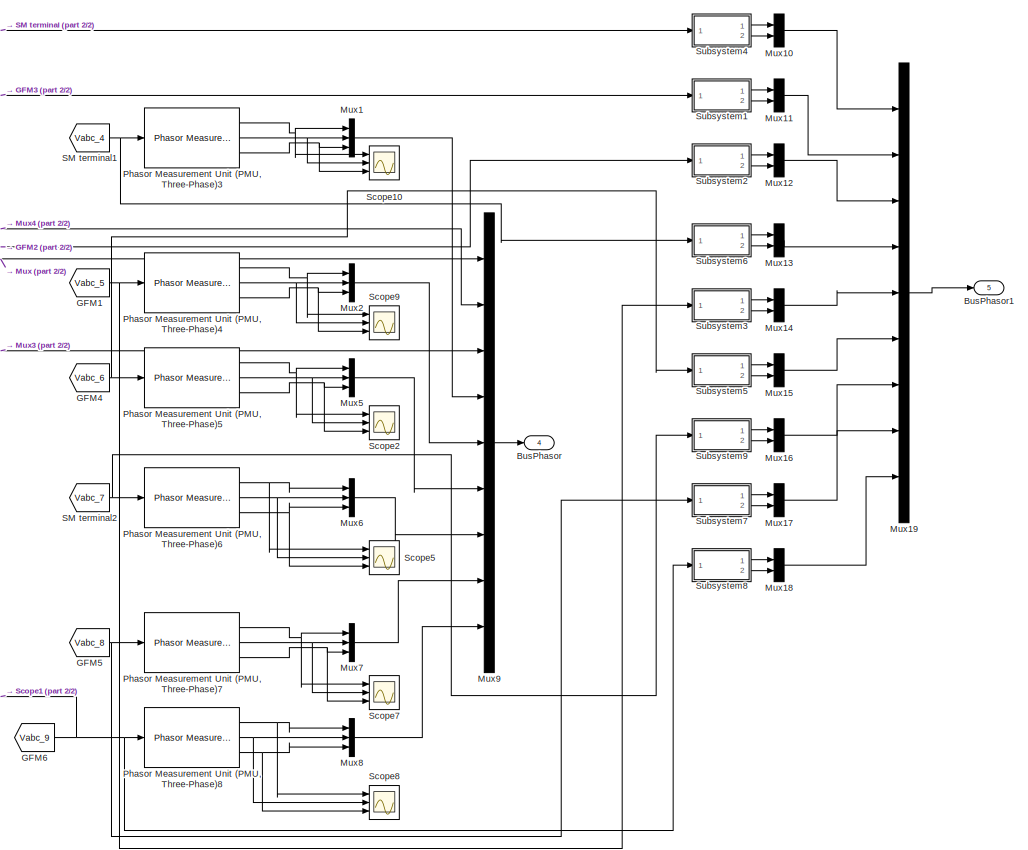
[diagram: terminal PMUs - part 1/2, right side, full height]
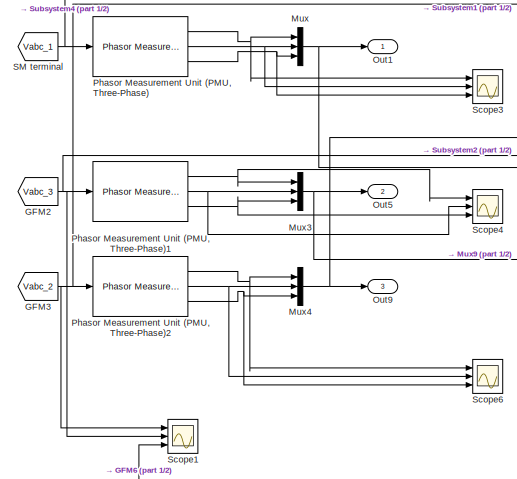
[diagram: terminal PMUs - part 2/2, middle left region]
BLOCK [SubSystem] terminal PMUs
  Commented = on
  Ports = [0, 5]
BLOCK [Outport] terminal PMUs/BusPhasor
  Port = 4
BLOCK [Outport] terminal PMUs/BusPhasor1
  Port = 5
BLOCK [From] terminal PMUs/GFM1
  GotoTag = Vabc_5
  TagVisibility = global
BLOCK [From] terminal PMUs/GFM2
  GotoTag = Vabc_3
  TagVisibility = global
BLOCK [From] terminal PMUs/GFM3
  GotoTag = Vabc_2
  TagVisibility = global
BLOCK [From] terminal PMUs/GFM4
  GotoTag = Vabc_6
  TagVisibility = global
BLOCK [From] terminal PMUs/GFM5
  GotoTag = Vabc_8
  TagVisibility = global
BLOCK [From] terminal PMUs/GFM6
  GotoTag = Vabc_9
  TagVisibility = global
BLOCK [Mux] terminal PMUs/Mux
  DisplayOption = bar
  Inputs = 3
  Ports = [3, 1]
BLOCK [Mux] terminal PMUs/Mux1
  DisplayOption = bar
  Inputs = 3
  Ports = [3, 1]
BLOCK [Mux] terminal PMUs/Mux10
  DisplayOption = bar
  Inputs = 2
  Ports = [2, 1]
BLOCK [Mux] terminal PMUs/Mux11
  DisplayOption = bar
  Inputs = 2
  Ports = [2, 1]
BLOCK [Mux] terminal PMUs/Mux12
  DisplayOption = bar
  Inputs = 2
  Ports = [2, 1]
BLOCK [Mux] terminal PMUs/Mux13
  DisplayOption = bar
  Inputs = 2
  Ports = [2, 1]
BLOCK [Mux] terminal PMUs/Mux14
  DisplayOption = bar
  Inputs = 2
  Ports = [2, 1]
BLOCK [Mux] terminal PMUs/Mux15
  DisplayOption = bar
  Inputs = 2
  Ports = [2, 1]
BLOCK [Mux] terminal PMUs/Mux16
  DisplayOption = bar
  Inputs = 2
  Ports = [2, 1]
BLOCK [Mux] terminal PMUs/Mux17
  DisplayOption = bar
  Inputs = 2
  Ports = [2, 1]
BLOCK [Mux] terminal PMUs/Mux18
  DisplayOption = bar
  Inputs = 2
  Ports = [2, 1]
BLOCK [Mux] terminal PMUs/Mux19
  DisplayOption = bar
  Inputs = 9
  Ports = [9, 1]
BLOCK [Mux] terminal PMUs/Mux2
  DisplayOption = bar
  Inputs = 3
  Ports = [3, 1]
BLOCK [Mux] terminal PMUs/Mux3
  DisplayOption = bar
  Inputs = 3
  Ports = [3, 1]
BLOCK [Mux] terminal PMUs/Mux4
  DisplayOption = bar
  Inputs = 3
  Ports = [3, 1]
BLOCK [Mux] terminal PMUs/Mux5
  DisplayOption = bar
  Inputs = 3
  Ports = [3, 1]
BLOCK [Mux] terminal PMUs/Mux6
  DisplayOption = bar
  Inputs = 3
  Ports = [3, 1]
BLOCK [Mux] terminal PMUs/Mux7
  DisplayOption = bar
  Inputs = 3
  Ports = [3, 1]
BLOCK [Mux] terminal PMUs/Mux8
  DisplayOption = bar
  Inputs = 3
  Ports = [3, 1]
BLOCK [Mux] terminal PMUs/Mux9
  DisplayOption = bar
  Inputs = 9
  Ports = [9, 1]
BLOCK [Outport] terminal PMUs/Out1
BLOCK [Outport] terminal PMUs/Out5
  Port = 2
BLOCK [Outport] terminal PMUs/Out9
  Port = 3
BLOCK [Reference] terminal PMUs/Phasor Measurement Unit (PMU, Three-Phase)  REF=eePMU/Phasor Measurement Unit
(PMU, Three-Phase)
  Ports = [1, 3]
  SourceBlock = eePMU/Phasor Measurement Unit\n(PMU, Three-Phase)
  SourceType = Phasor Measurement Unit (PMU, Three-Phase)
BLOCK [Reference] terminal PMUs/Phasor Measurement Unit (PMU, Three-Phase)1  REF=eePMU/Phasor Measurement Unit
(PMU, Three-Phase)
  Ports = [1, 3]
  SourceBlock = eePMU/Phasor Measurement Unit\n(PMU, Three-Phase)
  SourceType = Phasor Measurement Unit (PMU, Three-Phase)
BLOCK [Reference] terminal PMUs/Phasor Measurement Unit (PMU, Three-Phase)2  REF=eePMU/Phasor Measurement Unit
(PMU, Three-Phase)
  Ports = [1, 3]
  SourceBlock = eePMU/Phasor Measurement Unit\n(PMU, Three-Phase)
  SourceType = Phasor Measurement Unit (PMU, Three-Phase)
BLOCK [Reference] terminal PMUs/Phasor Measurement Unit (PMU, Three-Phase)3  REF=eePMU/Phasor Measurement Unit
(PMU, Three-Phase)
  Ports = [1, 3]
  SourceBlock = eePMU/Phasor Measurement Unit\n(PMU, Three-Phase)
  SourceType = Phasor Measurement Unit (PMU, Three-Phase)
BLOCK [Reference] terminal PMUs/Phasor Measurement Unit (PMU, Three-Phase)4  REF=eePMU/Phasor Measurement Unit
(PMU, Three-Phase)
  Ports = [1, 3]
  SourceBlock = eePMU/Phasor Measurement Unit\n(PMU, Three-Phase)
  SourceType = Phasor Measurement Unit (PMU, Three-Phase)
BLOCK [Reference] terminal PMUs/Phasor Measurement Unit (PMU, Three-Phase)5  REF=eePMU/Phasor Measurement Unit
(PMU, Three-Phase)
  Ports = [1, 3]
  SourceBlock = eePMU/Phasor Measurement Unit\n(PMU, Three-Phase)
  SourceType = Phasor Measurement Unit (PMU, Three-Phase)
BLOCK [Reference] terminal PMUs/Phasor Measurement Unit (PMU, Three-Phase)6  REF=eePMU/Phasor Measurement Unit
(PMU, Three-Phase)
  Ports = [1, 3]
  SourceBlock = eePMU/Phasor Measurement Unit\n(PMU, Three-Phase)
  SourceType = Phasor Measurement Unit (PMU, Three-Phase)
BLOCK [Reference] terminal PMUs/Phasor Measurement Unit (PMU, Three-Phase)7  REF=eePMU/Phasor Measurement Unit
(PMU, Three-Phase)
  Ports = [1, 3]
  SourceBlock = eePMU/Phasor Measurement Unit\n(PMU, Three-Phase)
  SourceType = Phasor Measurement Unit (PMU, Three-Phase)
BLOCK [Reference] terminal PMUs/Phasor Measurement Unit (PMU, Three-Phase)8  REF=eePMU/Phasor Measurement Unit
(PMU, Three-Phase)
  Ports = [1, 3]
  SourceBlock = eePMU/Phasor Measurement Unit\n(PMU, Three-Phase)
  SourceType = Phasor Measurement Unit (PMU, Three-Phase)
BLOCK [From] terminal PMUs/SM terminal
  GotoTag = Vabc_1
  TagVisibility = global
BLOCK [From] terminal PMUs/SM terminal1
  GotoTag = Vabc_4
  TagVisibility = global
BLOCK [From] terminal PMUs/SM terminal2
  GotoTag = Vabc_7
  TagVisibility = global
BLOCK [Scope] terminal PMUs/Scope1
  Commented = on
  Floating = off
  NumInputPorts = 3
  Ports = [3]
  ScopeSpecificationString = Simulink.scopes.TimeScopeBlockCfg('CurrentConfiguration', extmgr.ConfigurationSet(extmgr.Configuration('Core','General UI',true),extmgr.Configuration('Core','Source UI',true),extmgr.Configuration('Sources','WiredSimulink',true,'DataLoggingVariableName','ScopeData1'),extmgr.Configuration('Visuals','Time Domain',true,'SerializedDisplays',{struct('MinYLimReal','-47033.63105','MaxYLimReal','54712.5696...<+2924ch>
BLOCK [Scope] terminal PMUs/Scope10
  Commented = on
  Floating = off
  NumInputPorts = 3
  Ports = [3]
  ScopeSpecificationString = Simulink.scopes.TimeScopeBlockCfg('CurrentConfiguration', extmgr.ConfigurationSet(extmgr.Configuration('Core','General UI',true),extmgr.Configuration('Core','Source UI',true),extmgr.Configuration('Sources','WiredSimulink',true,'DataLoggingVariableName','ScopeData9'),extmgr.Configuration('Visuals','Time Domain',true,'SerializedDisplays',{struct('MinYLimReal','45.5499','MaxYLimReal','55.18218','YLab...<+2834ch>
BLOCK [Scope] terminal PMUs/Scope2
  Commented = on
  Floating = off
  NumInputPorts = 3
  Ports = [3]
  ScopeSpecificationString = Simulink.scopes.TimeScopeBlockCfg('CurrentConfiguration', extmgr.ConfigurationSet(extmgr.Configuration('Core','General UI',true),extmgr.Configuration('Core','Source UI',true),extmgr.Configuration('Sources','WiredSimulink',true,'DataLoggingVariableName','ScopeData4'),extmgr.Configuration('Visuals','Time Domain',true,'SerializedDisplays',{struct('MinYLimReal','44.74509','MaxYLimReal','53.93898','YLa...<+2704ch>
BLOCK [Scope] terminal PMUs/Scope3
  Commented = on
  Floating = off
  NumInputPorts = 3
  Ports = [3]
  ScopeSpecificationString = Simulink.scopes.TimeScopeBlockCfg('CurrentConfiguration', extmgr.ConfigurationSet(extmgr.Configuration('Core','General UI',true),extmgr.Configuration('Core','Source UI',true),extmgr.Configuration('Sources','WiredSimulink',true,'DataLoggingVariableName','ScopeData2'),extmgr.Configuration('Visuals','Time Domain',true,'SerializedDisplays',{struct('MinYLimReal','43.93287','MaxYLimReal','57.59426','YLa...<+2835ch>
BLOCK [Scope] terminal PMUs/Scope4
  Commented = on
  Floating = off
  NumInputPorts = 3
  Ports = [3]
  ScopeSpecificationString = Simulink.scopes.TimeScopeBlockCfg('CurrentConfiguration', extmgr.ConfigurationSet(extmgr.Configuration('Core','General UI',true),extmgr.Configuration('Core','Source UI',true),extmgr.Configuration('Sources','WiredSimulink',true,'DataLoggingVariableName','ScopeData3'),extmgr.Configuration('Visuals','Time Domain',true,'SerializedDisplays',{struct('MinYLimReal','44.52316','MaxYLimReal','55.00143','YLa...<+2837ch>
BLOCK [Scope] terminal PMUs/Scope5
  Commented = on
  Floating = off
  NumInputPorts = 3
  Ports = [3]
  ScopeSpecificationString = Simulink.scopes.TimeScopeBlockCfg('CurrentConfiguration', extmgr.ConfigurationSet(extmgr.Configuration('Core','General UI',true),extmgr.Configuration('Core','Source UI',true),extmgr.Configuration('Sources','WiredSimulink',true,'DataLoggingVariableName','ScopeData5'),extmgr.Configuration('Visuals','Time Domain',true,'SerializedDisplays',{struct('MinYLimReal','44.74509','MaxYLimReal','53.93898','YLa...<+2704ch>
BLOCK [Scope] terminal PMUs/Scope6
  Commented = on
  Floating = off
  NumInputPorts = 3
  Ports = [3]
  ScopeSpecificationString = Simulink.scopes.TimeScopeBlockCfg('CurrentConfiguration', extmgr.ConfigurationSet(extmgr.Configuration('Core','General UI',true),extmgr.Configuration('Core','Source UI',true),extmgr.Configuration('Sources','WiredSimulink',true,'DataLoggingVariableName','ScopeData10'),extmgr.Configuration('Visuals','Time Domain',true,'SerializedDisplays',{struct('MinYLimReal','49.98102','MaxYLimReal','49.99426','YL...<+2786ch>
BLOCK [Scope] terminal PMUs/Scope7
  Commented = on
  Floating = off
  NumInputPorts = 3
  Ports = [3]
  ScopeSpecificationString = Simulink.scopes.TimeScopeBlockCfg('CurrentConfiguration', extmgr.ConfigurationSet(extmgr.Configuration('Core','General UI',true),extmgr.Configuration('Core','Source UI',true),extmgr.Configuration('Sources','WiredSimulink',true,'DataLoggingVariableName','ScopeData7'),extmgr.Configuration('Visuals','Time Domain',true,'SerializedDisplays',{struct('MinYLimReal','44.74509','MaxYLimReal','53.93898','YLa...<+2704ch>
BLOCK [Scope] terminal PMUs/Scope8
  Commented = on
  Floating = off
  NumInputPorts = 3
  Ports = [3]
  ScopeSpecificationString = Simulink.scopes.TimeScopeBlockCfg('CurrentConfiguration', extmgr.ConfigurationSet(extmgr.Configuration('Core','General UI',true),extmgr.Configuration('Core','Source UI',true),extmgr.Configuration('Sources','WiredSimulink',true,'DataLoggingVariableName','ScopeData8'),extmgr.Configuration('Visuals','Time Domain',true,'SerializedDisplays',{struct('MinYLimReal','45.63905','MaxYLimReal','54.75821','YLa...<+2837ch>
BLOCK [Scope] terminal PMUs/Scope9
  Commented = on
  Floating = off
  NumInputPorts = 3
  Ports = [3]
  ScopeSpecificationString = Simulink.scopes.TimeScopeBlockCfg('CurrentConfiguration', extmgr.ConfigurationSet(extmgr.Configuration('Core','General UI',true),extmgr.Configuration('Core','Source UI',true),extmgr.Configuration('Sources','WiredSimulink',true,'DataLoggingVariableName','ScopeData6'),extmgr.Configuration('Visuals','Time Domain',true,'SerializedDisplays',{struct('MinYLimReal','44.74509','MaxYLimReal','53.93898','YLa...<+2839ch>
BLOCK [SubSystem] terminal PMUs/Subsystem1
  Ports = [1, 2]
BLOCK [Reference] terminal PMUs/Subsystem1/Cartesian to Polar  REF=simulink_extras/Transformations/Cartesian to
Polar
  Ports = [2, 2]
  SourceBlock = simulink_extras/Transformations/Cartesian to\nPolar
  SourceType = Cart2Polar
BLOCK [Demux] terminal PMUs/Subsystem1/Demux
  Outputs = 3
  Ports = [1, 3]
BLOCK [Inport] terminal PMUs/Subsystem1/abc
BLOCK [Reference] terminal PMUs/Subsystem1/abc to Alpha-Beta-Zero  REF=spsabctoAlphaBetaZeroLib/abc to
Alpha-Beta-Zero
  Ports = [1, 1]
  SourceBlock = spsabctoAlphaBetaZeroLib/abc to\nAlpha-Beta-Zero
  SourceType = abc to Alpha-Beta-Zero Transformation
BLOCK [Outport] terminal PMUs/Subsystem1/r
BLOCK [Outport] terminal PMUs/Subsystem1/theta
  Port = 2
BLOCK [SubSystem] terminal PMUs/Subsystem2
  Ports = [1, 2]
BLOCK [Reference] terminal PMUs/Subsystem2/Cartesian to Polar  REF=simulink_extras/Transformations/Cartesian to
Polar
  Ports = [2, 2]
  SourceBlock = simulink_extras/Transformations/Cartesian to\nPolar
  SourceType = Cart2Polar
BLOCK [Demux] terminal PMUs/Subsystem2/Demux
  Outputs = 3
  Ports = [1, 3]
BLOCK [Inport] terminal PMUs/Subsystem2/abc
BLOCK [Reference] terminal PMUs/Subsystem2/abc to Alpha-Beta-Zero  REF=spsabctoAlphaBetaZeroLib/abc to
Alpha-Beta-Zero
  Ports = [1, 1]
  SourceBlock = spsabctoAlphaBetaZeroLib/abc to\nAlpha-Beta-Zero
  SourceType = abc to Alpha-Beta-Zero Transformation
BLOCK [Outport] terminal PMUs/Subsystem2/r
BLOCK [Outport] terminal PMUs/Subsystem2/theta
  Port = 2
BLOCK [SubSystem] terminal PMUs/Subsystem3
  Ports = [1, 2]
BLOCK [Reference] terminal PMUs/Subsystem3/Cartesian to Polar  REF=simulink_extras/Transformations/Cartesian to
Polar
  Ports = [2, 2]
  SourceBlock = simulink_extras/Transformations/Cartesian to\nPolar
  SourceType = Cart2Polar
BLOCK [Demux] terminal PMUs/Subsystem3/Demux
  Outputs = 3
  Ports = [1, 3]
BLOCK [Inport] terminal PMUs/Subsystem3/abc
BLOCK [Reference] terminal PMUs/Subsystem3/abc to Alpha-Beta-Zero  REF=spsabctoAlphaBetaZeroLib/abc to
Alpha-Beta-Zero
  Ports = [1, 1]
  SourceBlock = spsabctoAlphaBetaZeroLib/abc to\nAlpha-Beta-Zero
  SourceType = abc to Alpha-Beta-Zero Transformation
BLOCK [Outport] terminal PMUs/Subsystem3/r
BLOCK [Outport] terminal PMUs/Subsystem3/theta
  Port = 2
BLOCK [SubSystem] terminal PMUs/Subsystem4
  Ports = [1, 2]
BLOCK [Reference] terminal PMUs/Subsystem4/Cartesian to Polar  REF=simulink_extras/Transformations/Cartesian to
Polar
  Ports = [2, 2]
  SourceBlock = simulink_extras/Transformations/Cartesian to\nPolar
  SourceType = Cart2Polar
BLOCK [Demux] terminal PMUs/Subsystem4/Demux
  Outputs = 3
  Ports = [1, 3]
BLOCK [Inport] terminal PMUs/Subsystem4/abc
BLOCK [Reference] terminal PMUs/Subsystem4/abc to Alpha-Beta-Zero  REF=spsabctoAlphaBetaZeroLib/abc to
Alpha-Beta-Zero
  Ports = [1, 1]
  SourceBlock = spsabctoAlphaBetaZeroLib/abc to\nAlpha-Beta-Zero
  SourceType = abc to Alpha-Beta-Zero Transformation
BLOCK [Outport] terminal PMUs/Subsystem4/r
BLOCK [Outport] terminal PMUs/Subsystem4/theta
  Port = 2
BLOCK [SubSystem] terminal PMUs/Subsystem5
  Ports = [1, 2]
BLOCK [Reference] terminal PMUs/Subsystem5/Cartesian to Polar  REF=simulink_extras/Transformations/Cartesian to
Polar
  Ports = [2, 2]
  SourceBlock = simulink_extras/Transformations/Cartesian to\nPolar
  SourceType = Cart2Polar
BLOCK [Demux] terminal PMUs/Subsystem5/Demux
  Outputs = 3
  Ports = [1, 3]
BLOCK [Inport] terminal PMUs/Subsystem5/abc
BLOCK [Reference] terminal PMUs/Subsystem5/abc to Alpha-Beta-Zero  REF=spsabctoAlphaBetaZeroLib/abc to
Alpha-Beta-Zero
  Ports = [1, 1]
  SourceBlock = spsabctoAlphaBetaZeroLib/abc to\nAlpha-Beta-Zero
  SourceType = abc to Alpha-Beta-Zero Transformation
BLOCK [Outport] terminal PMUs/Subsystem5/r
BLOCK [Outport] terminal PMUs/Subsystem5/theta
  Port = 2
BLOCK [SubSystem] terminal PMUs/Subsystem6
  Ports = [1, 2]
BLOCK [Reference] terminal PMUs/Subsystem6/Cartesian to Polar  REF=simulink_extras/Transformations/Cartesian to
Polar
  Ports = [2, 2]
  SourceBlock = simulink_extras/Transformations/Cartesian to\nPolar
  SourceType = Cart2Polar
BLOCK [Demux] terminal PMUs/Subsystem6/Demux
  Outputs = 3
  Ports = [1, 3]
BLOCK [Inport] terminal PMUs/Subsystem6/abc
BLOCK [Reference] terminal PMUs/Subsystem6/abc to Alpha-Beta-Zero  REF=spsabctoAlphaBetaZeroLib/abc to
Alpha-Beta-Zero
  Ports = [1, 1]
  SourceBlock = spsabctoAlphaBetaZeroLib/abc to\nAlpha-Beta-Zero
  SourceType = abc to Alpha-Beta-Zero Transformation
BLOCK [Outport] terminal PMUs/Subsystem6/r
BLOCK [Outport] terminal PMUs/Subsystem6/theta
  Port = 2
BLOCK [SubSystem] terminal PMUs/Subsystem7
  Ports = [1, 2]
BLOCK [Reference] terminal PMUs/Subsystem7/Cartesian to Polar  REF=simulink_extras/Transformations/Cartesian to
Polar
  Ports = [2, 2]
  SourceBlock = simulink_extras/Transformations/Cartesian to\nPolar
  SourceType = Cart2Polar
BLOCK [Demux] terminal PMUs/Subsystem7/Demux
  Outputs = 3
  Ports = [1, 3]
BLOCK [Inport] terminal PMUs/Subsystem7/abc
BLOCK [Reference] terminal PMUs/Subsystem7/abc to Alpha-Beta-Zero  REF=spsabctoAlphaBetaZeroLib/abc to
Alpha-Beta-Zero
  Ports = [1, 1]
  SourceBlock = spsabctoAlphaBetaZeroLib/abc to\nAlpha-Beta-Zero
  SourceType = abc to Alpha-Beta-Zero Transformation
BLOCK [Outport] terminal PMUs/Subsystem7/r
BLOCK [Outport] terminal PMUs/Subsystem7/theta
  Port = 2
BLOCK [SubSystem] terminal PMUs/Subsystem8
  Ports = [1, 2]
BLOCK [Reference] terminal PMUs/Subsystem8/Cartesian to Polar  REF=simulink_extras/Transformations/Cartesian to
Polar
  Ports = [2, 2]
  SourceBlock = simulink_extras/Transformations/Cartesian to\nPolar
  SourceType = Cart2Polar
BLOCK [Demux] terminal PMUs/Subsystem8/Demux
  Outputs = 3
  Ports = [1, 3]
BLOCK [Inport] terminal PMUs/Subsystem8/abc
BLOCK [Reference] terminal PMUs/Subsystem8/abc to Alpha-Beta-Zero  REF=spsabctoAlphaBetaZeroLib/abc to
Alpha-Beta-Zero
  Ports = [1, 1]
  SourceBlock = spsabctoAlphaBetaZeroLib/abc to\nAlpha-Beta-Zero
  SourceType = abc to Alpha-Beta-Zero Transformation
BLOCK [Outport] terminal PMUs/Subsystem8/r
BLOCK [Outport] terminal PMUs/Subsystem8/theta
  Port = 2
BLOCK [SubSystem] terminal PMUs/Subsystem9
  Ports = [1, 2]
BLOCK [Reference] terminal PMUs/Subsystem9/Cartesian to Polar  REF=simulink_extras/Transformations/Cartesian to
Polar
  Ports = [2, 2]
  SourceBlock = simulink_extras/Transformations/Cartesian to\nPolar
  SourceType = Cart2Polar
BLOCK [Demux] terminal PMUs/Subsystem9/Demux
  Outputs = 3
  Ports = [1, 3]
BLOCK [Inport] terminal PMUs/Subsystem9/abc
BLOCK [Reference] terminal PMUs/Subsystem9/abc to Alpha-Beta-Zero  REF=spsabctoAlphaBetaZeroLib/abc to
Alpha-Beta-Zero
  Ports = [1, 1]
  SourceBlock = spsabctoAlphaBetaZeroLib/abc to\nAlpha-Beta-Zero
  SourceType = abc to Alpha-Beta-Zero Transformation
BLOCK [Outport] terminal PMUs/Subsystem9/r
BLOCK [Outport] terminal PMUs/Subsystem9/theta
  Port = 2
ANNOTATION (root): Change SM params and reduce relative P_ref for GFM
NET Add1:1 -> GFC 1:2, Mux:2, Scope2:2
NET Add:1 -> GFC 1:1, Mux:1, Scope2:1
LINE Clock1:1 -> Switch1:2
LINE Clock2:1 -> Switch2:2
LINE Clock3:1 -> Switch3:2
LINE Clock:1 -> Switch:2
LINE Constant10:1 -> Switch3:1
LINE Constant1:1 -> Switch:3
LINE Constant2:1 -> Switch2:3
LINE Constant3:1 -> Switch:1
LINE Constant5:1 -> Switch3:3
LINE Constant6:1 -> Switch2:1
LINE Constant7:1 -> Switch1:3
LINE Constant8:1 -> Synchronous Machine:1
LINE Constant9:1 -> Switch1:1
LINE Demux:1 -> Scope:1
LINE Demux:2 -> Scope:2
LINE Demux:3 -> Scope:3
LINE Demux:4 -> Scope:4
LINE Demux:5 -> Scope:5
LINE Demux:6 -> Scope:6
LINE Demux:7 -> Scope:7
LINE Demux:8 -> Scope:8
LINE From10:1 -> Rate Transition12:1
LINE From12:1 -> Rate Transition54:1
LINE From13:1 -> Mux6:1
LINE From14:1 -> Rate Transition53:1
LINE From1:1 -> Mux1:1
LINE From23:1 -> Mux6:2
LINE From2:1 -> Mux1:2
LINE From4:1 -> Mux2:1
LINE From5:1 -> Mux2:2
LINE From7:1 -> Rate Transition52:1
LINE From8:1 -> Mux3:2
LINE From:1 -> Mux3:1
LINE GFC 1/Add2:1 -> GFC 1/Transfer Fcn2:1
LINE GFC 1/Add4:1 -> GFC 1/LTI System3:1
LINE GFC 1/Add6:1 -> GFC 1/Gain16:1
LINE GFC 1/Clock:1 -> GFC 1/Switch:2
LINE GFC 1/Constant1:1 -> GFC 1/dVOC  - kappa=pi//2:1
LINE GFC 1/Constant2:1 -> GFC 1/dVOC  - kappa=pi//2:4
LINE GFC 1/Constant3:1 -> GFC 1/Add6:1
NET GFC 1/Current Loop/Demux1:1 -> GFC 1/Current Loop/Product1:2, GFC 1/Current Loop/Sum:2
NET GFC 1/Current Loop/Demux1:2 -> GFC 1/Current Loop/Product:1, GFC 1/Current Loop/Sum6:1
LINE GFC 1/Current Loop/Demux2:1 -> GFC 1/Current Loop/Voltage compensator:1
LINE GFC 1/Current Loop/Demux2:2 -> GFC 1/Current Loop/Voltage Compensator 1:1
LINE GFC 1/Current Loop/Demux:1 -> GFC 1/Current Loop/Sum:1
LINE GFC 1/Current Loop/Demux:2 -> GFC 1/Current Loop/Sum6:2
LINE GFC 1/Current Loop/Gain Corrector1:1 -> GFC 1/Current Loop/Sum5:2
LINE GFC 1/Current Loop/Gain Corrector:1 -> GFC 1/Current Loop/Sum2:1
LINE GFC 1/Current Loop/Integration Time 1:1 -> GFC 1/Current Loop/Integrator 1:1
LINE GFC 1/Current Loop/Integration Time1:1 -> GFC 1/Current Loop/Sum1:2
LINE GFC 1/Current Loop/Integration Time2:1 -> GFC 1/Current Loop/Sum4:2
LINE GFC 1/Current Loop/Integration Time:1 -> GFC 1/Current Loop/Integrator:1
LINE GFC 1/Current Loop/Integrator 1:1 -> GFC 1/Current Loop/Sum4:1
LINE GFC 1/Current Loop/Integrator:1 -> GFC 1/Current Loop/Sum1:1
LINE GFC 1/Current Loop/Mux:1 -> GFC 1/Current Loop/v_s_ref_dq0:1
LINE GFC 1/Current Loop/Product1:1 -> GFC 1/Current Loop/Sum5:1
LINE GFC 1/Current Loop/Product:1 -> GFC 1/Current Loop/Sum2:2
LINE GFC 1/Current Loop/Selector1:1 -> GFC 1/Current Loop/Demux:1
LINE GFC 1/Current Loop/Selector2:1 -> GFC 1/Current Loop/Demux1:1
LINE GFC 1/Current Loop/Selector3:1 -> GFC 1/Current Loop/Demux2:1
LINE GFC 1/Current Loop/Sum1:1 -> GFC 1/Current Loop/Gain Corrector:1
LINE GFC 1/Current Loop/Sum2:1 -> GFC 1/Current Loop/Sum3:1
LINE GFC 1/Current Loop/Sum3:1 -> GFC 1/Current Loop/Mux:1
LINE GFC 1/Current Loop/Sum4:1 -> GFC 1/Current Loop/Gain Corrector1:1
LINE GFC 1/Current Loop/Sum5:1 -> GFC 1/Current Loop/Sum7:2
NET GFC 1/Current Loop/Sum6:1 -> GFC 1/Current Loop/Integration Time 1:1, GFC 1/Current Loop/Integration Time2:1
LINE GFC 1/Current Loop/Sum7:1 -> GFC 1/Current Loop/Mux:2
NET GFC 1/Current Loop/Sum:1 -> GFC 1/Current Loop/Integration Time1:1, GFC 1/Current Loop/Integration Time:1
LINE GFC 1/Current Loop/Vm_0*:1 -> GFC 1/Current Loop/Mux:3
LINE GFC 1/Current Loop/Voltage Compensator 1:1 -> GFC 1/Current Loop/Sum7:1
LINE GFC 1/Current Loop/Voltage compensator:1 -> GFC 1/Current Loop/Sum3:2
LINE GFC 1/Current Loop/i_s_dq0:1 -> GFC 1/Current Loop/Selector2:1
LINE GFC 1/Current Loop/i_s_ref_dq0:1 -> GFC 1/Current Loop/Selector1:1
LINE GFC 1/Current Loop/v_dq0:1 -> GFC 1/Current Loop/Selector3:1
NET GFC 1/Current Loop/w*Lf_pu:1 -> GFC 1/Current Loop/Product1:1, GFC 1/Current Loop/Product:2
LINE GFC 1/Current Loop/w:1 -> GFC 1/Current Loop/w*Lf_pu:1
LINE GFC 1/Current Loop:1 -> GFC 1/Goto28:1
LINE GFC 1/Current Measurement1:1 -> GFC 1/Mux3:1
LINE GFC 1/Current Measurement2:1 -> GFC 1/Mux3:2
LINE GFC 1/Current Measurement3:1 -> GFC 1/Mux3:3
LINE GFC 1/Current Measurement4:1 -> GFC 1/Mux4:1
LINE GFC 1/Current Measurement5:1 -> GFC 1/Mux4:2
LINE GFC 1/Current Measurement6:1 -> GFC 1/Mux4:3
NET GFC 1/Demux2:1 -> GFC 1/d²2:1, GFC 1/d²2:2
NET GFC 1/Demux2:2 -> GFC 1/q²4:1, GFC 1/q²4:2
NET GFC 1/Demux2:3 -> GFC 1/q²5:1, GFC 1/q²5:2
LINE GFC 1/From10:1 -> GFC 1/dVOC  - kappa=pi//2:5
LINE GFC 1/From11:1 -> GFC 1/Gain7:1
LINE GFC 1/From12:1 -> GFC 1/dVOC  - kappa=pi//2:3
LINE GFC 1/From13:1 -> GFC 1/Gain3:1
LINE GFC 1/From14:1 -> GFC 1/dVOC  - kappa=pi//2:2
LINE GFC 1/From15:1 -> GFC 1/dVOC  - kappa=pi//2:6
LINE GFC 1/From16:1 -> GFC 1/Mux:1
LINE GFC 1/From17:1 -> GFC 1/Theta:1
LINE GFC 1/From18:1 -> GFC 1/Mux:2
LINE GFC 1/From19:1 -> GFC 1/abc to dq1:1
LINE GFC 1/From1:1 -> GFC 1/Gain12:1
LINE GFC 1/From20:1 -> GFC 1/Demux2:1
LINE GFC 1/From21:1 -> GFC 1/Mux:3
LINE GFC 1/From22:1 -> GFC 1/abc to dq2:1
LINE GFC 1/From23:1 -> GFC 1/Mux:4
LINE GFC 1/From24:1 -> GFC 1/Mux:5
LINE GFC 1/From25:1 -> GFC 1/Mux:6
LINE GFC 1/From2:1 -> GFC 1/abc to dq4:1
LINE GFC 1/From31:1 -> GFC 1/dq0 to abc:1
LINE GFC 1/From32:1 -> GFC 1/dq0 to abc:2
LINE GFC 1/From3:1 -> GFC 1/abc to dq5:1
LINE GFC 1/From41:1 -> GFC 1/Voltage Loop:3
LINE GFC 1/From42:1 -> GFC 1/Voltage Loop:1
LINE GFC 1/From43:1 -> GFC 1/Voltage Loop:4
LINE GFC 1/From44:1 -> GFC 1/Voltage Loop:2
LINE GFC 1/From45:1 -> GFC 1/Current Loop:4
LINE GFC 1/From46:1 -> GFC 1/Current Loop:2
LINE GFC 1/From47:1 -> GFC 1/Current Loop:3
LINE GFC 1/From4:1 -> GFC 1/abc to dq6:1
LINE GFC 1/From5:1 -> GFC 1/Add2:1
LINE GFC 1/From61:1 -> GFC 1/Add2:2
LINE GFC 1/From62:1 -> GFC 1/Gain17:1
LINE GFC 1/From63:1 -> GFC 1/Add6:2
LINE GFC 1/From6:1 -> GFC 1/abc to dq3:1
NET GFC 1/From7:1 -> GFC 1/abc to dq1:2, GFC 1/abc to dq2:2
LINE GFC 1/From8:1 -> GFC 1/Gain13:1
NET GFC 1/From9:1 -> GFC 1/abc to dq3:2, GFC 1/abc to dq4:2, GFC 1/abc to dq5:2, GFC 1/abc to dq6:2
LINE GFC 1/From:1 -> GFC 1/Gain4:1
LINE GFC 1/Gain12:1 -> GFC 1/f:1
LINE GFC 1/Gain13:1 -> GFC 1/Add4:2
LINE GFC 1/Gain14:1 -> GFC 1/Add4:4
LINE GFC 1/Gain16:1 -> GFC 1/Add4:1
LINE GFC 1/Gain17:1 -> GFC 1/Add4:3
LINE GFC 1/Gain19:1 -> GFC 1/Universal Bridge:1
LINE GFC 1/Gain1:1 -> GFC 1/Goto14:1
LINE GFC 1/Gain2:1 -> GFC 1/Goto7:1
NET GFC 1/Gain3:1 -> GFC 1/Mux:8, GFC 1/Q:1
LINE GFC 1/Gain4:1 -> GFC 1/V:1
NET GFC 1/Gain7:1 -> GFC 1/Mux:7, GFC 1/P:1
NET GFC 1/LTI System3:1 -> GFC 1/Saturation:1, GFC 1/Switch:3
LINE GFC 1/Memory1:1 -> GFC 1/Goto:1
LINE GFC 1/Memory2:1 -> GFC 1/Goto3:1
LINE GFC 1/Memory3:1 -> GFC 1/Goto2:1
LINE GFC 1/Memory4:1 -> GFC 1/Goto4:1
LINE GFC 1/Memory:1 -> GFC 1/Goto1:1
LINE GFC 1/Mux1:1 -> GFC 1/Memory:1
LINE GFC 1/Mux2:1 -> GFC 1/Memory2:1
LINE GFC 1/Mux3:1 -> GFC 1/Memory3:1
LINE GFC 1/Mux4:1 -> GFC 1/Memory1:1
LINE GFC 1/Mux:1 -> GFC 1/States:1
LINE GFC 1/Power (dq0, Instantaneous):1 -> GFC 1/Goto8:1
LINE GFC 1/Power (dq0, Instantaneous):2 -> GFC 1/Goto12:1
LINE GFC 1/Pset:1 -> GFC 1/Gain2:1
LINE GFC 1/Qset:1 -> GFC 1/Gain1:1
LINE GFC 1/Saturation:1 -> GFC 1/Switch:1
LINE GFC 1/Sqrt2:1 -> GFC 1/Goto20:1
LINE GFC 1/Sum2:1 -> GFC 1/Sqrt2:1
LINE GFC 1/Switch:1 -> GFC 1/i_dc1:1
LINE GFC 1/Transfer Fcn2:1 -> GFC 1/Gain14:1
LINE GFC 1/Voltage Loop/Current Compensator1:1 -> GFC 1/Voltage Loop/Sum7:1
LINE GFC 1/Voltage Loop/Current Compensator:1 -> GFC 1/Voltage Loop/Sum3:2
LINE GFC 1/Voltage Loop/Damping (d):1 -> GFC 1/Voltage Loop/Sum2:1
LINE GFC 1/Voltage Loop/Damping (q):1 -> GFC 1/Voltage Loop/Sum5:2
NET GFC 1/Voltage Loop/Demux1:1 -> GFC 1/Voltage Loop/Eg_d * (wCf):1, GFC 1/Voltage Loop/Sum:2
NET GFC 1/Voltage Loop/Demux1:2 -> GFC 1/Voltage Loop/Eg_q * (wCf) :1, GFC 1/Voltage Loop/Sum6:1
LINE GFC 1/Voltage Loop/Demux2:1 -> GFC 1/Voltage Loop/Current Compensator:1
LINE GFC 1/Voltage Loop/Demux2:2 -> GFC 1/Voltage Loop/Current Compensator1:1
LINE GFC 1/Voltage Loop/Demux:1 -> GFC 1/Voltage Loop/Sum:1
LINE GFC 1/Voltage Loop/Demux:2 -> GFC 1/Voltage Loop/Sum6:2
LINE GFC 1/Voltage Loop/Eg_d * (wCf):1 -> GFC 1/Voltage Loop/Sum5:1
LINE GFC 1/Voltage Loop/Eg_q * (wCf) :1 -> GFC 1/Voltage Loop/Sum2:2
NET GFC 1/Voltage Loop/Filter capacitance:1 -> GFC 1/Voltage Loop/Eg_d * (wCf):2, GFC 1/Voltage Loop/Eg_q * (wCf) :2
LINE GFC 1/Voltage Loop/Integration Time1:1 -> GFC 1/Voltage Loop/Integrator1:1
LINE GFC 1/Voltage Loop/Integration Time2:1 -> GFC 1/Voltage Loop/Sum1:2
LINE GFC 1/Voltage Loop/Integration Time3:1 -> GFC 1/Voltage Loop/Sum4:2
LINE GFC 1/Voltage Loop/Integration Time:1 -> GFC 1/Voltage Loop/Integrator:1
LINE GFC 1/Voltage Loop/Integrator1:1 -> GFC 1/Voltage Loop/Sum4:1
LINE GFC 1/Voltage Loop/Integrator:1 -> GFC 1/Voltage Loop/Sum1:1
LINE GFC 1/Voltage Loop/Is_0*:1 -> GFC 1/Voltage Loop/Mux:3
LINE GFC 1/Voltage Loop/Mux:1 -> GFC 1/Voltage Loop/i_s_ref_dq0:1
LINE GFC 1/Voltage Loop/Selector1:1 -> GFC 1/Voltage Loop/Demux:1
LINE GFC 1/Voltage Loop/Selector2:1 -> GFC 1/Voltage Loop/Demux2:1
LINE GFC 1/Voltage Loop/Selector:1 -> GFC 1/Voltage Loop/Demux1:1
LINE GFC 1/Voltage Loop/Sum1:1 -> GFC 1/Voltage Loop/Damping (d):1
LINE GFC 1/Voltage Loop/Sum2:1 -> GFC 1/Voltage Loop/Sum3:1
LINE GFC 1/Voltage Loop/Sum3:1 -> GFC 1/Voltage Loop/Mux:1
LINE GFC 1/Voltage Loop/Sum4:1 -> GFC 1/Voltage Loop/Damping (q):1
LINE GFC 1/Voltage Loop/Sum5:1 -> GFC 1/Voltage Loop/Sum7:2
NET GFC 1/Voltage Loop/Sum6:1 -> GFC 1/Voltage Loop/Integration Time1:1, GFC 1/Voltage Loop/Integration Time3:1, GFC 1/Voltage Loop/Scope:2
LINE GFC 1/Voltage Loop/Sum7:1 -> GFC 1/Voltage Loop/Mux:2
NET GFC 1/Voltage Loop/Sum:1 -> GFC 1/Voltage Loop/Integration Time2:1, GFC 1/Voltage Loop/Integration Time:1, GFC 1/Voltage Loop/Scope:1
LINE GFC 1/Voltage Loop/i_dq0:1 -> GFC 1/Voltage Loop/Selector2:1
LINE GFC 1/Voltage Loop/v_dq0:1 -> GFC 1/Voltage Loop/Selector:1
LINE GFC 1/Voltage Loop/v_ref_dq0:1 -> GFC 1/Voltage Loop/Selector1:1
LINE GFC 1/Voltage Loop/w:1 -> GFC 1/Voltage Loop/Filter capacitance:1
LINE GFC 1/Voltage Loop:1 -> GFC 1/Current Loop:1
LINE GFC 1/Voltage Measurement1:1 -> GFC 1/Mux1:1
LINE GFC 1/Voltage Measurement2:1 -> GFC 1/Mux1:2
LINE GFC 1/Voltage Measurement3:1 -> GFC 1/Mux1:3
LINE GFC 1/Voltage Measurement4:1 -> GFC 1/Mux2:1
LINE GFC 1/Voltage Measurement5:1 -> GFC 1/Mux2:2
LINE GFC 1/Voltage Measurement6:1 -> GFC 1/Mux2:3
LINE GFC 1/Voltage Measurement:1 -> GFC 1/Memory4:1
LINE GFC 1/abc to dq1:1 -> GFC 1/Power (dq0, Instantaneous):2
LINE GFC 1/abc to dq2:1 -> GFC 1/Power (dq0, Instantaneous):1
LINE GFC 1/abc to dq3:1 -> GFC 1/Goto6:1
LINE GFC 1/abc to dq4:1 -> GFC 1/Goto11:1
LINE GFC 1/abc to dq5:1 -> GFC 1/Goto13:1
LINE GFC 1/abc to dq6:1 -> GFC 1/Goto16:1
LINE GFC 1/dVOC  - kappa=pi//2/APC/Constant:1 -> GFC 1/dVOC  - kappa=pi//2/APC/Sum:1
LINE GFC 1/dVOC  - kappa=pi//2/APC/Divide1:1 -> GFC 1/dVOC  - kappa=pi//2/APC/Sum1:2
LINE GFC 1/dVOC  - kappa=pi//2/APC/Divide:1 -> GFC 1/dVOC  - kappa=pi//2/APC/Sum1:1
LINE GFC 1/dVOC  - kappa=pi//2/APC/Gain:1 -> GFC 1/dVOC  - kappa=pi//2/APC/dw:1
LINE GFC 1/dVOC  - kappa=pi//2/APC/Square1:1 -> GFC 1/dVOC  - kappa=pi//2/APC/Sum:2
LINE GFC 1/dVOC  - kappa=pi//2/APC/Square:1 -> GFC 1/dVOC  - kappa=pi//2/APC/Divide1:2
LINE GFC 1/dVOC  - kappa=pi//2/APC/Sum1:1 -> GFC 1/dVOC  - kappa=pi//2/APC/Gain:1
LINE GFC 1/dVOC  - kappa=pi//2/APC/Sum:1 -> GFC 1/dVOC  - kappa=pi//2/APC/Divide:2
LINE GFC 1/dVOC  - kappa=pi//2/APC/Transfer Fcn4:1 -> GFC 1/dVOC  - kappa=pi//2/APC/Divide:1
LINE GFC 1/dVOC  - kappa=pi//2/APC/p*:1 -> GFC 1/dVOC  - kappa=pi//2/APC/Divide1:1
LINE GFC 1/dVOC  - kappa=pi//2/APC/p:1 -> GFC 1/dVOC  - kappa=pi//2/APC/Transfer Fcn4:1
LINE GFC 1/dVOC  - kappa=pi//2/APC/v*:1 -> GFC 1/dVOC  - kappa=pi//2/APC/Square:1
LINE GFC 1/dVOC  - kappa=pi//2/APC/v:1 -> GFC 1/dVOC  - kappa=pi//2/APC/Square1:1
LINE GFC 1/dVOC  - kappa=pi//2/APC:1 -> GFC 1/dVOC  - kappa=pi//2/Sum8:2
NET GFC 1/dVOC  - kappa=pi//2/Integrator1:1 -> GFC 1/dVOC  - kappa=pi//2/APC:3, GFC 1/dVOC  - kappa=pi//2/Multiply1:2, GFC 1/dVOC  - kappa=pi//2/Mux4:1, GFC 1/dVOC  - kappa=pi//2/P-AVR:1, GFC 1/dVOC  - kappa=pi//2/RPC:3
LINE GFC 1/dVOC  - kappa=pi//2/Integrator3:1 -> GFC 1/dVOC  - kappa=pi//2/theta_ref:1
LINE GFC 1/dVOC  - kappa=pi//2/Multiply1:1 -> GFC 1/dVOC  - kappa=pi//2/Integrator1:1
LINE GFC 1/dVOC  - kappa=pi//2/Mux4:1 -> GFC 1/dVOC  - kappa=pi//2/v_ref_dq0:1
LINE GFC 1/dVOC  - kappa=pi//2/P-AVR/Divide:1 -> GFC 1/dVOC  - kappa=pi//2/P-AVR/dv:1
LINE GFC 1/dVOC  - kappa=pi//2/P-AVR/Gain:1 -> GFC 1/dVOC  - kappa=pi//2/P-AVR/Divide:1
LINE GFC 1/dVOC  - kappa=pi//2/P-AVR/Square1:1 -> GFC 1/dVOC  - kappa=pi//2/P-AVR/Sum1:1
NET GFC 1/dVOC  - kappa=pi//2/P-AVR/Square:1 -> GFC 1/dVOC  - kappa=pi//2/P-AVR/Divide:2, GFC 1/dVOC  - kappa=pi//2/P-AVR/Sum1:2
LINE GFC 1/dVOC  - kappa=pi//2/P-AVR/Sum1:1 -> GFC 1/dVOC  - kappa=pi//2/P-AVR/Gain:1
LINE GFC 1/dVOC  - kappa=pi//2/P-AVR/v*:1 -> GFC 1/dVOC  - kappa=pi//2/P-AVR/Square:1
LINE GFC 1/dVOC  - kappa=pi//2/P-AVR/v:1 -> GFC 1/dVOC  - kappa=pi//2/P-AVR/Square1:1
LINE GFC 1/dVOC  - kappa=pi//2/P-AVR:1 -> GFC 1/dVOC  - kappa=pi//2/Sum4:2
LINE GFC 1/dVOC  - kappa=pi//2/RPC/Constant:1 -> GFC 1/dVOC  - kappa=pi//2/RPC/Sum:1
LINE GFC 1/dVOC  - kappa=pi//2/RPC/Divide1:1 -> GFC 1/dVOC  - kappa=pi//2/RPC/Sum1:2
LINE GFC 1/dVOC  - kappa=pi//2/RPC/Divide:1 -> GFC 1/dVOC  - kappa=pi//2/RPC/Sum1:1
LINE GFC 1/dVOC  - kappa=pi//2/RPC/Gain:1 -> GFC 1/dVOC  - kappa=pi//2/RPC/dv:1
LINE GFC 1/dVOC  - kappa=pi//2/RPC/Square1:1 -> GFC 1/dVOC  - kappa=pi//2/RPC/Sum:2
LINE GFC 1/dVOC  - kappa=pi//2/RPC/Square:1 -> GFC 1/dVOC  - kappa=pi//2/RPC/Divide1:2
LINE GFC 1/dVOC  - kappa=pi//2/RPC/Sum1:1 -> GFC 1/dVOC  - kappa=pi//2/RPC/Gain:1
LINE GFC 1/dVOC  - kappa=pi//2/RPC/Sum:1 -> GFC 1/dVOC  - kappa=pi//2/RPC/Divide:2
LINE GFC 1/dVOC  - kappa=pi//2/RPC/Transfer Fcn4:1 -> GFC 1/dVOC  - kappa=pi//2/RPC/Divide:1
LINE GFC 1/dVOC  - kappa=pi//2/RPC/q*:1 -> GFC 1/dVOC  - kappa=pi//2/RPC/Divide1:1
LINE GFC 1/dVOC  - kappa=pi//2/RPC/q:1 -> GFC 1/dVOC  - kappa=pi//2/RPC/Transfer Fcn4:1
LINE GFC 1/dVOC  - kappa=pi//2/RPC/v*:1 -> GFC 1/dVOC  - kappa=pi//2/RPC/Square:1
LINE GFC 1/dVOC  - kappa=pi//2/RPC/v:1 -> GFC 1/dVOC  - kappa=pi//2/RPC/Square1:1
LINE GFC 1/dVOC  - kappa=pi//2/RPC:1 -> GFC 1/dVOC  - kappa=pi//2/Sum4:1
LINE GFC 1/dVOC  - kappa=pi//2/Sum4:1 -> GFC 1/dVOC  - kappa=pi//2/Multiply1:1
NET GFC 1/dVOC  - kappa=pi//2/Sum8:1 -> GFC 1/dVOC  - kappa=pi//2/Integrator3:1, GFC 1/dVOC  - kappa=pi//2/w_ref:1
LINE GFC 1/dVOC  - kappa=pi//2/p_m:1 -> GFC 1/dVOC  - kappa=pi//2/APC:1
LINE GFC 1/dVOC  - kappa=pi//2/p_set:1 -> GFC 1/dVOC  - kappa=pi//2/APC:2
NET GFC 1/dVOC  - kappa=pi//2/q0:1 -> GFC 1/dVOC  - kappa=pi//2/Mux4:2, GFC 1/dVOC  - kappa=pi//2/Mux4:3
LINE GFC 1/dVOC  - kappa=pi//2/q_m:1 -> GFC 1/dVOC  - kappa=pi//2/RPC:1
LINE GFC 1/dVOC  - kappa=pi//2/q_set:1 -> GFC 1/dVOC  - kappa=pi//2/RPC:2
NET GFC 1/dVOC  - kappa=pi//2/v_m:1 -> GFC 1/dVOC  - kappa=pi//2/APC:4, GFC 1/dVOC  - kappa=pi//2/P-AVR:2, GFC 1/dVOC  - kappa=pi//2/RPC:4
LINE GFC 1/dVOC  - kappa=pi//2/w_b:1 -> GFC 1/dVOC  - kappa=pi//2/Sum8:1
LINE GFC 1/dVOC  - kappa=pi//2:1 -> GFC 1/Goto10:1
LINE GFC 1/dVOC  - kappa=pi//2:2 -> GFC 1/Goto9:1
LINE GFC 1/dVOC  - kappa=pi//2:3 -> GFC 1/Goto5:1
LINE GFC 1/dq0 to abc:1 -> GFC 1/Gain19:1
LINE GFC 1/d²2:1 -> GFC 1/Sum2:1
LINE GFC 1/q²4:1 -> GFC 1/Sum2:2
LINE GFC 1/q²5:1 -> GFC 1/Sum2:3
LINE GFC 1:1 -> Goto58:1
LINE GFC 1:2 -> Goto19:1
LINE GFC 1:3 -> Goto59:1
LINE GFC 1:4 -> Goto20:1
LINE GFC 1:5 -> Goto6:1
NET GFC 1:6 -> Demux:1, To Workspace2:1
LINE GFM3:1 -> Phasor Measurement Unit (PMU, Three-Phase)2:1
NET Mux1:1 -> Power2:2, To Workspace5:1
NET Mux2:1 -> Power2:3, To Workspace6:1
NET Mux3:1 -> Power2:4, To Workspace1:1
LINE Mux4:1 -> To Workspace13:1
NET Mux6:1 -> Power2:1, To Workspace3:1
LINE Mux:1 -> To Workspace14:1
LINE Phasor Measurement Unit (PMU, Three-Phase)2:1 -> Mux4:1
LINE Phasor Measurement Unit (PMU, Three-Phase)2:2 -> Mux4:2
LINE Phasor Measurement Unit (PMU, Three-Phase)2:3 -> Mux4:3
LINE Rate Transition12:1 -> To Workspace11:1
LINE Rate Transition52:1 -> To Workspace55:1
LINE Rate Transition53:1 -> To Workspace12:1
LINE Rate Transition54:1 -> To Workspace10:1
LINE Switch1:1 -> Add1:1
LINE Switch2:1 -> Add:2
LINE Switch3:1 -> Add1:2
LINE Switch:1 -> Add:1
LINE Synchronous Machine/Bus Selector3:1 -> Synchronous Machine/Goto:1
LINE Synchronous Machine/Bus Selector3:2 -> Synchronous Machine/Goto1:1
LINE Synchronous Machine/Bus Selector3:3 -> Synchronous Machine/Goto2:1
LINE Synchronous Machine/Bus Selector3:4 -> Synchronous Machine/Goto3:1
LINE Synchronous Machine/Bus Selector3:5 -> Synchronous Machine/Goto4:1
LINE Synchronous Machine/Bus Selector3:6 -> Synchronous Machine/Goto6:1
LINE Synchronous Machine/Bus Selector3:7 -> Synchronous Machine/Goto7:1
LINE Synchronous Machine/Bus Selector3:8 -> Synchronous Machine/Goto5:1
NET Synchronous Machine/Excitation System:1 -> Synchronous Machine/Mux:6, Synchronous Machine/Scope1:3, Synchronous Machine/Synchronous Machine pu Fundamental:2
NET Synchronous Machine/From10:1 -> Synchronous Machine/ST1A Excitation System:3, Synchronous Machine/ST1A_new:3
LINE Synchronous Machine/From11:1 -> Synchronous Machine/Mux:2
LINE Synchronous Machine/From12:1 -> Synchronous Machine/Mux:3
LINE Synchronous Machine/From13:1 -> Synchronous Machine/Mux:4
LINE Synchronous Machine/From14:1 -> Synchronous Machine/Hydraulic Turbine and Governor:4
LINE Synchronous Machine/From15:1 -> Synchronous Machine/Hydraulic Turbine and Governor:5
LINE Synchronous Machine/From16:1 -> Synchronous Machine/Q:1
LINE Synchronous Machine/From1:1 -> Synchronous Machine/Mux3:1
LINE Synchronous Machine/From2:1 -> Synchronous Machine/Mux3:2
LINE Synchronous Machine/From3:1 -> Synchronous Machine/P:1
LINE Synchronous Machine/From4:1 -> Synchronous Machine/Theta:1
LINE Synchronous Machine/From5:1 -> Synchronous Machine/Mux:1
LINE Synchronous Machine/From6:1 -> Synchronous Machine/Generic Power System Stabilizer:1
NET Synchronous Machine/From7:1 -> Synchronous Machine/Excitation System:3, Synchronous Machine/Mux1:2
NET Synchronous Machine/From8:1 -> Synchronous Machine/Excitation System:2, Synchronous Machine/Mux1:1
NET Synchronous Machine/From9:1 -> Synchronous Machine/Hydraulic Turbine and Governor:3, Synchronous Machine/SM Governor with Droop:3, Synchronous Machine/Subsystem2:3
LINE Synchronous Machine/From:1 -> Synchronous Machine/Gain:1
LINE Synchronous Machine/Gain:1 -> Synchronous Machine/f:1
NET Synchronous Machine/Generic Power System Stabilizer:1 -> Synchronous Machine/Excitation System:4, Synchronous Machine/ST1A Excitation System:4, Synchronous Machine/ST1A_new:4
LINE Synchronous Machine/Gov w// droop:1 -> Synchronous Machine/Scope:2
LINE Synchronous Machine/Hydraulic Turbine and Governor:1 -> Synchronous Machine/Scope:3
LINE Synchronous Machine/Hydraulic Turbine and Governor:2 -> Synchronous Machine/Terminator:1
LINE Synchronous Machine/Mux1:1 -> Synchronous Machine/Positive Sequence Voltage1:1
LINE Synchronous Machine/Mux3:1 -> Synchronous Machine/Positive Sequence Voltage2:1
LINE Synchronous Machine/Mux:1 -> Synchronous Machine/States:1
NET Synchronous Machine/Positive Sequence Voltage1:1 -> Synchronous Machine/ST1A Excitation System:2, Synchronous Machine/ST1A_new:2
LINE Synchronous Machine/Positive Sequence Voltage2:1 -> Synchronous Machine/V:1
NET Synchronous Machine/Pset:1 -> Synchronous Machine/Hydraulic Turbine and Governor:2, Synchronous Machine/SM Governor with Droop:1, Synchronous Machine/Subsystem2:1
LINE Synchronous Machine/SM Governor with Droop:1 -> Synchronous Machine/Gov w// droop:1
LINE Synchronous Machine/ST1A Excitation System:1 -> Synchronous Machine/Scope1:1
LINE Synchronous Machine/ST1A_new:1 -> Synchronous Machine/Scope1:2
LINE Synchronous Machine/Subsystem2/1//droop:1 -> Synchronous Machine/Subsystem2/Delta load setpoint:2
LINE Synchronous Machine/Subsystem2/Delta load setpoint:1 -> Synchronous Machine/Subsystem2/throttle:1
LINE Synchronous Machine/Subsystem2/Delta speed:1 -> Synchronous Machine/Subsystem2/1//droop:1
LINE Synchronous Machine/Subsystem2/P_ref:1 -> Synchronous Machine/Subsystem2/Delta load setpoint:1
LINE Synchronous Machine/Subsystem2/speed:1 -> Synchronous Machine/Subsystem2/Delta speed:2
LINE Synchronous Machine/Subsystem2/speed_ref:1 -> Synchronous Machine/Subsystem2/Delta speed:1
LINE Synchronous Machine/Subsystem2:1 -> Synchronous Machine/original droop:1
LINE Synchronous Machine/Synchronous Machine pu Fundamental:1 -> Synchronous Machine/Bus Selector3:1
LINE Synchronous Machine/Wref:1 -> Synchronous Machine/Hydraulic Turbine and Governor:1
NET Synchronous Machine/original droop:1 -> Synchronous Machine/Mux:5, Synchronous Machine/Scope:1, Synchronous Machine/Synchronous Machine pu Fundamental:1
NET Synchronous Machine/wref6:1 -> Synchronous Machine/Excitation System:1, Synchronous Machine/ST1A Excitation System:1, Synchronous Machine/ST1A_new:1
NET Synchronous Machine/wref7:1 -> Synchronous Machine/SM Governor with Droop:2, Synchronous Machine/Subsystem2:2
LINE Synchronous Machine:1 -> Goto53:1
LINE Synchronous Machine:2 -> Goto49:1
LINE Synchronous Machine:3 -> Goto54:1
LINE Synchronous Machine:4 -> Goto51:1
LINE Synchronous Machine:5 -> To Workspace:1
LINE Synchronous Machine:6 -> Goto:1
NET terminal PMUs/GFM1:1 -> terminal PMUs/Phasor Measurement Unit (PMU, Three-Phase)4:1, terminal PMUs/Subsystem3:1
NET terminal PMUs/GFM2:1 -> terminal PMUs/Phasor Measurement Unit (PMU, Three-Phase)1:1, terminal PMUs/Scope1:2, terminal PMUs/Subsystem2:1
NET terminal PMUs/GFM3:1 -> terminal PMUs/Phasor Measurement Unit (PMU, Three-Phase)2:1, terminal PMUs/Scope1:1, terminal PMUs/Subsystem1:1
NET terminal PMUs/GFM4:1 -> terminal PMUs/Phasor Measurement Unit (PMU, Three-Phase)5:1, terminal PMUs/Subsystem5:1
NET terminal PMUs/GFM5:1 -> terminal PMUs/Phasor Measurement Unit (PMU, Three-Phase)7:1, terminal PMUs/Subsystem7:1
NET terminal PMUs/GFM6:1 -> terminal PMUs/Phasor Measurement Unit (PMU, Three-Phase)8:1, terminal PMUs/Scope1:3, terminal PMUs/Subsystem8:1
LINE terminal PMUs/Mux10:1 -> terminal PMUs/Mux19:1
LINE terminal PMUs/Mux11:1 -> terminal PMUs/Mux19:2
LINE terminal PMUs/Mux12:1 -> terminal PMUs/Mux19:3
LINE terminal PMUs/Mux13:1 -> terminal PMUs/Mux19:4
LINE terminal PMUs/Mux14:1 -> terminal PMUs/Mux19:5
LINE terminal PMUs/Mux15:1 -> terminal PMUs/Mux19:6
LINE terminal PMUs/Mux16:1 -> terminal PMUs/Mux19:7
LINE terminal PMUs/Mux17:1 -> terminal PMUs/Mux19:8
LINE terminal PMUs/Mux18:1 -> terminal PMUs/Mux19:9
LINE terminal PMUs/Mux19:1 -> terminal PMUs/BusPhasor1:1
LINE terminal PMUs/Mux1:1 -> terminal PMUs/Mux9:4
LINE terminal PMUs/Mux2:1 -> terminal PMUs/Mux9:5
NET terminal PMUs/Mux3:1 -> terminal PMUs/Mux9:3, terminal PMUs/Out5:1
NET terminal PMUs/Mux4:1 -> terminal PMUs/Mux9:2, terminal PMUs/Out9:1
LINE terminal PMUs/Mux5:1 -> terminal PMUs/Mux9:6
LINE terminal PMUs/Mux6:1 -> terminal PMUs/Mux9:7
LINE terminal PMUs/Mux7:1 -> terminal PMUs/Mux9:8
LINE terminal PMUs/Mux8:1 -> terminal PMUs/Mux9:9
LINE terminal PMUs/Mux9:1 -> terminal PMUs/BusPhasor:1
NET terminal PMUs/Mux:1 -> terminal PMUs/Mux9:1, terminal PMUs/Out1:1
NET terminal PMUs/Phasor Measurement Unit (PMU, Three-Phase)1:1 -> terminal PMUs/Mux3:1, terminal PMUs/Scope4:1
NET terminal PMUs/Phasor Measurement Unit (PMU, Three-Phase)1:2 -> terminal PMUs/Mux3:2, terminal PMUs/Scope4:2
NET terminal PMUs/Phasor Measurement Unit (PMU, Three-Phase)1:3 -> terminal PMUs/Mux3:3, terminal PMUs/Scope4:3
NET terminal PMUs/Phasor Measurement Unit (PMU, Three-Phase)2:1 -> terminal PMUs/Mux4:1, terminal PMUs/Scope6:1
NET terminal PMUs/Phasor Measurement Unit (PMU, Three-Phase)2:2 -> terminal PMUs/Mux4:2, terminal PMUs/Scope6:2
NET terminal PMUs/Phasor Measurement Unit (PMU, Three-Phase)2:3 -> terminal PMUs/Mux4:3, terminal PMUs/Scope6:3
NET terminal PMUs/Phasor Measurement Unit (PMU, Three-Phase)3:1 -> terminal PMUs/Mux1:1, terminal PMUs/Scope10:1
NET terminal PMUs/Phasor Measurement Unit (PMU, Three-Phase)3:2 -> terminal PMUs/Mux1:2, terminal PMUs/Scope10:2
NET terminal PMUs/Phasor Measurement Unit (PMU, Three-Phase)3:3 -> terminal PMUs/Mux1:3, terminal PMUs/Scope10:3
NET terminal PMUs/Phasor Measurement Unit (PMU, Three-Phase)4:1 -> terminal PMUs/Mux2:1, terminal PMUs/Scope9:1
NET terminal PMUs/Phasor Measurement Unit (PMU, Three-Phase)4:2 -> terminal PMUs/Mux2:2, terminal PMUs/Scope9:2
NET terminal PMUs/Phasor Measurement Unit (PMU, Three-Phase)4:3 -> terminal PMUs/Mux2:3, terminal PMUs/Scope9:3
NET terminal PMUs/Phasor Measurement Unit (PMU, Three-Phase)5:1 -> terminal PMUs/Mux5:1, terminal PMUs/Scope2:1
NET terminal PMUs/Phasor Measurement Unit (PMU, Three-Phase)5:2 -> terminal PMUs/Mux5:2, terminal PMUs/Scope2:2
NET terminal PMUs/Phasor Measurement Unit (PMU, Three-Phase)5:3 -> terminal PMUs/Mux5:3, terminal PMUs/Scope2:3
NET terminal PMUs/Phasor Measurement Unit (PMU, Three-Phase)6:1 -> terminal PMUs/Mux6:1, terminal PMUs/Scope5:1
NET terminal PMUs/Phasor Measurement Unit (PMU, Three-Phase)6:2 -> terminal PMUs/Mux6:2, terminal PMUs/Scope5:2
NET terminal PMUs/Phasor Measurement Unit (PMU, Three-Phase)6:3 -> terminal PMUs/Mux6:3, terminal PMUs/Scope5:3
NET terminal PMUs/Phasor Measurement Unit (PMU, Three-Phase)7:1 -> terminal PMUs/Mux7:1, terminal PMUs/Scope7:1
NET terminal PMUs/Phasor Measurement Unit (PMU, Three-Phase)7:2 -> terminal PMUs/Mux7:2, terminal PMUs/Scope7:2
NET terminal PMUs/Phasor Measurement Unit (PMU, Three-Phase)7:3 -> terminal PMUs/Mux7:3, terminal PMUs/Scope7:3
NET terminal PMUs/Phasor Measurement Unit (PMU, Three-Phase)8:1 -> terminal PMUs/Mux8:1, terminal PMUs/Scope8:1
NET terminal PMUs/Phasor Measurement Unit (PMU, Three-Phase)8:2 -> terminal PMUs/Mux8:2, terminal PMUs/Scope8:2
NET terminal PMUs/Phasor Measurement Unit (PMU, Three-Phase)8:3 -> terminal PMUs/Mux8:3, terminal PMUs/Scope8:3
NET terminal PMUs/Phasor Measurement Unit (PMU, Three-Phase):1 -> terminal PMUs/Mux:1, terminal PMUs/Scope3:1
NET terminal PMUs/Phasor Measurement Unit (PMU, Three-Phase):2 -> terminal PMUs/Mux:2, terminal PMUs/Scope3:2
NET terminal PMUs/Phasor Measurement Unit (PMU, Three-Phase):3 -> terminal PMUs/Mux:3, terminal PMUs/Scope3:3
NET terminal PMUs/SM terminal1:1 -> terminal PMUs/Phasor Measurement Unit (PMU, Three-Phase)3:1, terminal PMUs/Subsystem6:1
NET terminal PMUs/SM terminal2:1 -> terminal PMUs/Phasor Measurement Unit (PMU, Three-Phase)6:1, terminal PMUs/Subsystem9:1
NET terminal PMUs/SM terminal:1 -> terminal PMUs/Phasor Measurement Unit (PMU, Three-Phase):1, terminal PMUs/Subsystem4:1
LINE terminal PMUs/Subsystem1/Cartesian to Polar:1 -> terminal PMUs/Subsystem1/r:1
LINE terminal PMUs/Subsystem1/Cartesian to Polar:2 -> terminal PMUs/Subsystem1/theta:1
LINE terminal PMUs/Subsystem1/Demux:1 -> terminal PMUs/Subsystem1/Cartesian to Polar:1
LINE terminal PMUs/Subsystem1/Demux:2 -> terminal PMUs/Subsystem1/Cartesian to Polar:2
LINE terminal PMUs/Subsystem1/abc to Alpha-Beta-Zero:1 -> terminal PMUs/Subsystem1/Demux:1
LINE terminal PMUs/Subsystem1/abc:1 -> terminal PMUs/Subsystem1/abc to Alpha-Beta-Zero:1
LINE terminal PMUs/Subsystem1:1 -> terminal PMUs/Mux11:1
LINE terminal PMUs/Subsystem1:2 -> terminal PMUs/Mux11:2
LINE terminal PMUs/Subsystem2/Cartesian to Polar:1 -> terminal PMUs/Subsystem2/r:1
LINE terminal PMUs/Subsystem2/Cartesian to Polar:2 -> terminal PMUs/Subsystem2/theta:1
LINE terminal PMUs/Subsystem2/Demux:1 -> terminal PMUs/Subsystem2/Cartesian to Polar:1
LINE terminal PMUs/Subsystem2/Demux:2 -> terminal PMUs/Subsystem2/Cartesian to Polar:2
LINE terminal PMUs/Subsystem2/abc to Alpha-Beta-Zero:1 -> terminal PMUs/Subsystem2/Demux:1
LINE terminal PMUs/Subsystem2/abc:1 -> terminal PMUs/Subsystem2/abc to Alpha-Beta-Zero:1
LINE terminal PMUs/Subsystem2:1 -> terminal PMUs/Mux12:1
LINE terminal PMUs/Subsystem2:2 -> terminal PMUs/Mux12:2
LINE terminal PMUs/Subsystem3/Cartesian to Polar:1 -> terminal PMUs/Subsystem3/r:1
LINE terminal PMUs/Subsystem3/Cartesian to Polar:2 -> terminal PMUs/Subsystem3/theta:1
LINE terminal PMUs/Subsystem3/Demux:1 -> terminal PMUs/Subsystem3/Cartesian to Polar:1
LINE terminal PMUs/Subsystem3/Demux:2 -> terminal PMUs/Subsystem3/Cartesian to Polar:2
LINE terminal PMUs/Subsystem3/abc to Alpha-Beta-Zero:1 -> terminal PMUs/Subsystem3/Demux:1
LINE terminal PMUs/Subsystem3/abc:1 -> terminal PMUs/Subsystem3/abc to Alpha-Beta-Zero:1
LINE terminal PMUs/Subsystem3:1 -> terminal PMUs/Mux14:1
LINE terminal PMUs/Subsystem3:2 -> terminal PMUs/Mux14:2
LINE terminal PMUs/Subsystem4/Cartesian to Polar:1 -> terminal PMUs/Subsystem4/r:1
LINE terminal PMUs/Subsystem4/Cartesian to Polar:2 -> terminal PMUs/Subsystem4/theta:1
LINE terminal PMUs/Subsystem4/Demux:1 -> terminal PMUs/Subsystem4/Cartesian to Polar:1
LINE terminal PMUs/Subsystem4/Demux:2 -> terminal PMUs/Subsystem4/Cartesian to Polar:2
LINE terminal PMUs/Subsystem4/abc to Alpha-Beta-Zero:1 -> terminal PMUs/Subsystem4/Demux:1
LINE terminal PMUs/Subsystem4/abc:1 -> terminal PMUs/Subsystem4/abc to Alpha-Beta-Zero:1
LINE terminal PMUs/Subsystem4:1 -> terminal PMUs/Mux10:1
LINE terminal PMUs/Subsystem4:2 -> terminal PMUs/Mux10:2
LINE terminal PMUs/Subsystem5/Cartesian to Polar:1 -> terminal PMUs/Subsystem5/r:1
LINE terminal PMUs/Subsystem5/Cartesian to Polar:2 -> terminal PMUs/Subsystem5/theta:1
LINE terminal PMUs/Subsystem5/Demux:1 -> terminal PMUs/Subsystem5/Cartesian to Polar:1
LINE terminal PMUs/Subsystem5/Demux:2 -> terminal PMUs/Subsystem5/Cartesian to Polar:2
LINE terminal PMUs/Subsystem5/abc to Alpha-Beta-Zero:1 -> terminal PMUs/Subsystem5/Demux:1
LINE terminal PMUs/Subsystem5/abc:1 -> terminal PMUs/Subsystem5/abc to Alpha-Beta-Zero:1
LINE terminal PMUs/Subsystem5:1 -> terminal PMUs/Mux15:1
LINE terminal PMUs/Subsystem5:2 -> terminal PMUs/Mux15:2
LINE terminal PMUs/Subsystem6/Cartesian to Polar:1 -> terminal PMUs/Subsystem6/r:1
LINE terminal PMUs/Subsystem6/Cartesian to Polar:2 -> terminal PMUs/Subsystem6/theta:1
LINE terminal PMUs/Subsystem6/Demux:1 -> terminal PMUs/Subsystem6/Cartesian to Polar:1
LINE terminal PMUs/Subsystem6/Demux:2 -> terminal PMUs/Subsystem6/Cartesian to Polar:2
LINE terminal PMUs/Subsystem6/abc to Alpha-Beta-Zero:1 -> terminal PMUs/Subsystem6/Demux:1
LINE terminal PMUs/Subsystem6/abc:1 -> terminal PMUs/Subsystem6/abc to Alpha-Beta-Zero:1
LINE terminal PMUs/Subsystem6:1 -> terminal PMUs/Mux13:1
LINE terminal PMUs/Subsystem6:2 -> terminal PMUs/Mux13:2
LINE terminal PMUs/Subsystem7/Cartesian to Polar:1 -> terminal PMUs/Subsystem7/r:1
LINE terminal PMUs/Subsystem7/Cartesian to Polar:2 -> terminal PMUs/Subsystem7/theta:1
LINE terminal PMUs/Subsystem7/Demux:1 -> terminal PMUs/Subsystem7/Cartesian to Polar:1
LINE terminal PMUs/Subsystem7/Demux:2 -> terminal PMUs/Subsystem7/Cartesian to Polar:2
LINE terminal PMUs/Subsystem7/abc to Alpha-Beta-Zero:1 -> terminal PMUs/Subsystem7/Demux:1
LINE terminal PMUs/Subsystem7/abc:1 -> terminal PMUs/Subsystem7/abc to Alpha-Beta-Zero:1
LINE terminal PMUs/Subsystem7:1 -> terminal PMUs/Mux17:1
LINE terminal PMUs/Subsystem7:2 -> terminal PMUs/Mux17:2
LINE terminal PMUs/Subsystem8/Cartesian to Polar:1 -> terminal PMUs/Subsystem8/r:1
LINE terminal PMUs/Subsystem8/Cartesian to Polar:2 -> terminal PMUs/Subsystem8/theta:1
LINE terminal PMUs/Subsystem8/Demux:1 -> terminal PMUs/Subsystem8/Cartesian to Polar:1
LINE terminal PMUs/Subsystem8/Demux:2 -> terminal PMUs/Subsystem8/Cartesian to Polar:2
LINE terminal PMUs/Subsystem8/abc to Alpha-Beta-Zero:1 -> terminal PMUs/Subsystem8/Demux:1
LINE terminal PMUs/Subsystem8/abc:1 -> terminal PMUs/Subsystem8/abc to Alpha-Beta-Zero:1
LINE terminal PMUs/Subsystem8:1 -> terminal PMUs/Mux18:1
LINE terminal PMUs/Subsystem8:2 -> terminal PMUs/Mux18:2
LINE terminal PMUs/Subsystem9/Cartesian to Polar:1 -> terminal PMUs/Subsystem9/r:1
LINE terminal PMUs/Subsystem9/Cartesian to Polar:2 -> terminal PMUs/Subsystem9/theta:1
LINE terminal PMUs/Subsystem9/Demux:1 -> terminal PMUs/Subsystem9/Cartesian to Polar:1
LINE terminal PMUs/Subsystem9/Demux:2 -> terminal PMUs/Subsystem9/Cartesian to Polar:2
LINE terminal PMUs/Subsystem9/abc to Alpha-Beta-Zero:1 -> terminal PMUs/Subsystem9/Demux:1
LINE terminal PMUs/Subsystem9/abc:1 -> terminal PMUs/Subsystem9/abc to Alpha-Beta-Zero:1
LINE terminal PMUs/Subsystem9:1 -> terminal PMUs/Mux16:1
LINE terminal PMUs/Subsystem9:2 -> terminal PMUs/Mux16:2
LINE terminal PMUs:1 -> To Workspace4:1
LINE terminal PMUs:2 -> To Workspace7:1
LINE terminal PMUs:3 -> To Workspace8:1
NET terminal PMUs:4 -> Scope1:1, To Workspace9:1
LINE terminal PMUs:5 -> Terminator1:1
PNET net1: Base Load 5:LConn1 -- Breaker2:LConn1 -- Bus 5:RConn1
PNET net2: Base Load 5:LConn2 -- Breaker2:LConn2 -- Bus 5:RConn2
PNET net3: Base Load 5:LConn3 -- Breaker2:LConn3 -- Bus 5:RConn3
PLINE Base Load 9 :LConn1 -- Bus 9:LConn1
PLINE Base Load 9 :LConn2 -- Bus 9:LConn2
PLINE Base Load 9 :LConn3 -- Bus 9:LConn3
PNET net4: Breaker1:LConn1 -- Bus1:LConn1 -- MV//HV Trafo :LConn1
PNET net5: Breaker1:LConn2 -- Bus1:LConn2 -- MV//HV Trafo :LConn2
PNET net6: Breaker1:LConn3 -- Bus1:LConn3 -- MV//HV Trafo :LConn3
PLINE Breaker1:RConn1 -- Three-Phase Fault3:LConn1
PLINE Breaker1:RConn2 -- Three-Phase Fault3:LConn2
PLINE Breaker1:RConn3 -- Three-Phase Fault3:LConn3
PLINE Breaker2:RConn1 -- Three-Phase Fault1:LConn1
PLINE Breaker2:RConn2 -- Three-Phase Fault1:LConn2
PLINE Breaker2:RConn3 -- Three-Phase Fault1:LConn3
PLINE Bus 2:LConn1 -- LV//MV Trafo 1:RConn1
PLINE Bus 2:LConn2 -- LV//MV Trafo 1:RConn2
PLINE Bus 2:LConn3 -- LV//MV Trafo 1:RConn3
PLINE Bus 2:RConn1 -- MV//HV Trafo 1 :LConn1
PLINE Bus 2:RConn2 -- MV//HV Trafo 1 :LConn2
PLINE Bus 2:RConn3 -- MV//HV Trafo 1 :LConn3
PLINE Bus 5:LConn1 -- Line45:RConn1
PLINE Bus 5:LConn2 -- Line45:RConn2
PLINE Bus 5:LConn3 -- Line45:RConn3
PNET net7: Bus 8:LConn1 -- C8:LConn1 -- MV//HV Trafo 1 :RConn1
PNET net8: Bus 8:LConn2 -- C8:LConn2 -- MV//HV Trafo 1 :RConn2
PNET net9: Bus 8:LConn3 -- C8:LConn3 -- MV//HV Trafo 1 :RConn3
PLINE Bus 8:RConn1 -- Line89:RConn1
PLINE Bus 8:RConn2 -- Line89:RConn2
PLINE Bus 8:RConn3 -- Line89:RConn3
PNET net10: Bus 9:RConn1 -- Line89:LConn1 -- Line94:RConn1
PNET net11: Bus 9:RConn2 -- Line89:LConn2 -- Line94:RConn2
PNET net12: Bus 9:RConn3 -- Line89:LConn3 -- Line94:RConn3
PLINE Bus1:RConn1 -- Synchronous Machine:RConn1
PLINE Bus1:RConn2 -- Synchronous Machine:RConn2
PLINE Bus1:RConn3 -- Synchronous Machine:RConn3
PNET net13: Bus4:LConn1 -- Line45:LConn1 -- Line94:LConn1
PNET net14: Bus4:LConn2 -- Line45:LConn2 -- Line94:LConn2
PNET net15: Bus4:LConn3 -- Line45:LConn3 -- Line94:LConn3
PNET net16: Bus4:RConn1 -- C4:LConn1 -- Three-Phase Breaker1:RConn1
PNET net17: Bus4:RConn2 -- C4:LConn2 -- Three-Phase Breaker1:RConn2
PNET net18: Bus4:RConn3 -- C4:LConn3 -- Three-Phase Breaker1:RConn3
PNET net19: C4:RConn1 -- C4:RConn2 -- C4:RConn3 -- Ground1:LConn1
PNET net20: C8:RConn1 -- C8:RConn2 -- C8:RConn3 -- Ground2:LConn1
PLINE GFC 1/A:RConn1 -- GFC 1/Current Measurement1:RConn1
PLINE GFC 1/B:RConn1 -- GFC 1/Current Measurement2:RConn1
PLINE GFC 1/C:RConn1 -- GFC 1/Current Measurement3:RConn1
PNET net21: GFC 1/C_a:LConn1 -- GFC 1/Current Measurement3:LConn1 -- GFC 1/RL_a:RConn1 -- GFC 1/Voltage Measurement6:LConn1
PNET net22: GFC 1/C_a:RConn1 -- GFC 1/C_b:RConn1 -- GFC 1/C_c1:RConn1 -- GFC 1/Ground2:LConn1
PNET net23: GFC 1/C_b:LConn1 -- GFC 1/Current Measurement2:LConn1 -- GFC 1/RL_b:RConn1 -- GFC 1/Voltage Measurement5:LConn1
PNET net24: GFC 1/C_c1:LConn1 -- GFC 1/Current Measurement1:LConn1 -- GFC 1/RL_c:RConn1 -- GFC 1/Voltage Measurement4:LConn1
PNET net25: GFC 1/C_dc1:LConn1 -- GFC 1/G_dc1:LConn1 -- GFC 1/Universal Bridge:RConn1 -- GFC 1/Voltage Measurement:LConn1 -- GFC 1/i_dc1:RConn1
PNET net26: GFC 1/C_dc1:RConn1 -- GFC 1/G_dc1:RConn1 -- GFC 1/Universal Bridge:RConn2 -- GFC 1/Voltage Measurement:LConn2 -- GFC 1/i_dc1:LConn1
PNET net27: GFC 1/Current Measurement4:LConn1 -- GFC 1/Universal Bridge:LConn1 -- GFC 1/Voltage Measurement1:LConn1
PLINE GFC 1/Current Measurement4:RConn1 -- GFC 1/RL_c:LConn1
PNET net28: GFC 1/Current Measurement5:LConn1 -- GFC 1/Universal Bridge:LConn2 -- GFC 1/Voltage Measurement2:LConn1
PLINE GFC 1/Current Measurement5:RConn1 -- GFC 1/RL_b:LConn1
PNET net29: GFC 1/Current Measurement6:LConn1 -- GFC 1/Universal Bridge:LConn3 -- GFC 1/Voltage Measurement3:LConn1
PLINE GFC 1/Current Measurement6:RConn1 -- GFC 1/RL_a:LConn1
PNET net30: GFC 1/Ground1:LConn1 -- GFC 1/Voltage Measurement4:LConn2 -- GFC 1/Voltage Measurement5:LConn2 -- GFC 1/Voltage Measurement6:LConn2
PNET net31: GFC 1/Ground:LConn1 -- GFC 1/Voltage Measurement1:LConn2 -- GFC 1/Voltage Measurement2:LConn2 -- GFC 1/Voltage Measurement3:LConn2
PLINE GFC 1:RConn1 -- LV//MV Trafo 1:LConn3
PLINE GFC 1:RConn2 -- LV//MV Trafo 1:LConn2
PLINE GFC 1:RConn3 -- LV//MV Trafo 1:LConn1
PLINE MV//HV Trafo :RConn1 -- Three-Phase Breaker1:LConn1
PLINE MV//HV Trafo :RConn2 -- Three-Phase Breaker1:LConn2
PLINE MV//HV Trafo :RConn3 -- Three-Phase Breaker1:LConn3
PNET net32: Synchronous Machine/A:RConn1 -- Synchronous Machine/Synchronous Machine pu Fundamental:RConn1 -- Synchronous Machine/Terminal Load:LConn1
PNET net33: Synchronous Machine/B:RConn1 -- Synchronous Machine/Synchronous Machine pu Fundamental:RConn2 -- Synchronous Machine/Terminal Load:LConn2
PNET net34: Synchronous Machine/C:RConn1 -- Synchronous Machine/Synchronous Machine pu Fundamental:RConn3 -- Synchronous Machine/Terminal Load:LConn3
note: NET lines group one-source signal fan-out (src -> all destinations, sorted); 1:1 wires keep LINE; PNET lines group multi-terminal physical nets as a canonical sorted terminal list (undirected conserving connections); 2-terminal nets keep the pairwise PLINE form
